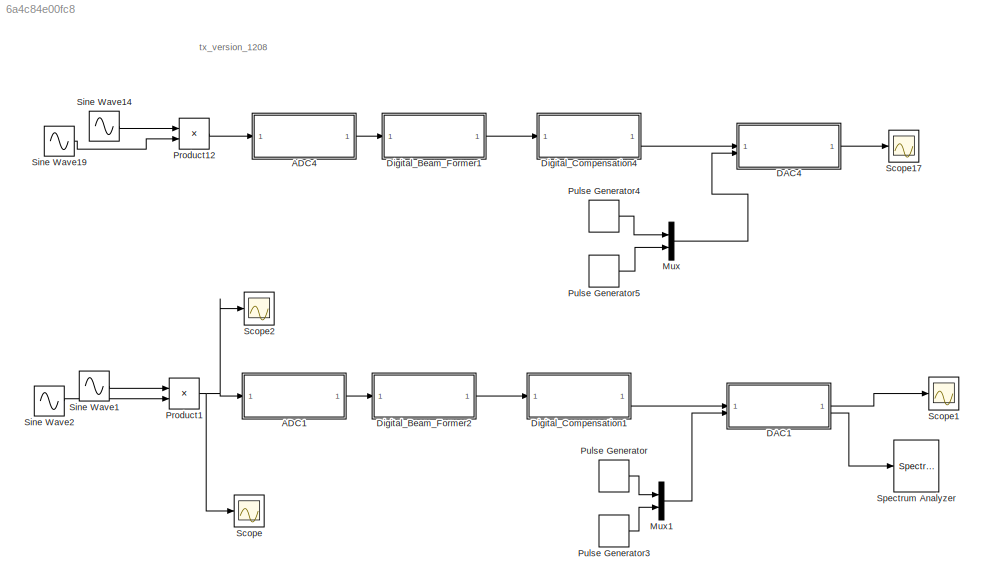
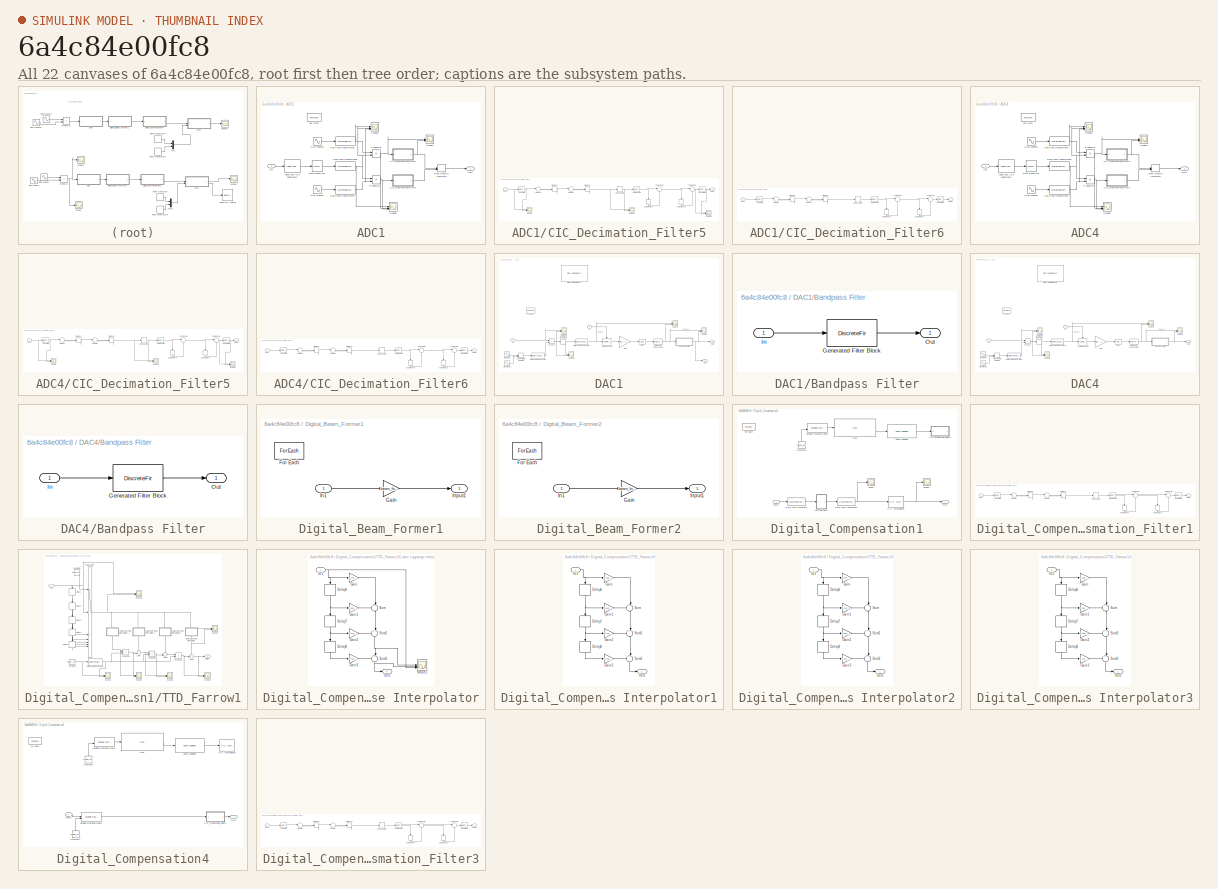
[diagram: thumbnail index - all 22 canvases of the model, root first then tree order]
MODEL slx_6a4c84e00fc8
KIND model
CONFIG AbsTol = auto
CONFIG EnableMultiTasking = off
CONFIG FixedStep = auto
CONFIG MaxStep = auto
CONFIG MinStep = auto
CONFIG RelTol = 1e-3
CONFIG SampleTimeConstraint = Unconstrained
CONFIG SolverName = FixedStepAuto
CONFIG StartTime = 0.0
CONFIG StopTime = 100e-7
BLOCK [SubSystem] ADC1
  TreatAsAtomicUnit = on
BLOCK [SubSystem] ADC1/CIC_Decimation_Filter5
  ErrorFcn = dspFilterRealizedInBasicElemsAlgLoopErrFcnCallback
  Tag = FilterWizardSubSystem
  UserDataPersistent = on
BLOCK [DataTypeConversion] ADC1/CIC_Decimation_Filter5/CombCast5
  OutDataTypeStr = fixdt(1,34,15)
  RndMeth = Floor
  SaturateOnIntegerOverflow = off
BLOCK [Delay] ADC1/CIC_Decimation_Filter5/CombDelay5
  DelayLength = 1
  InitialCondition = 0
  InputPortMap = u0
  NameLocation = right
BLOCK [Delay] ADC1/CIC_Decimation_Filter5/CombDelay6
  DelayLength = 1
  InitialCondition = 0
  InputPortMap = u0
  NameLocation = right
BLOCK [Sum] ADC1/CIC_Decimation_Filter5/CombSum5
  AccumDataTypeStr = fixdt(1,34,15)
  Inputs = |+-
  OutDataTypeStr = fixdt(1,34,15)
BLOCK [Sum] ADC1/CIC_Decimation_Filter5/CombSum6
  AccumDataTypeStr = fixdt(1,34,15)
  Inputs = |+-
  OutDataTypeStr = fixdt(1,34,15)
BLOCK [DataTypeConversion] ADC1/CIC_Decimation_Filter5/ConvertIn
  OutDataTypeStr = fixdt(1,32,15)
  RndMeth = Nearest
BLOCK [DataTypeConversion] ADC1/CIC_Decimation_Filter5/ConvertOut
  OutDataTypeStr = fixdt(1,32,13)
  RndMeth = Floor
  SaturateOnIntegerOverflow = off
BLOCK [DownSample] ADC1/CIC_Decimation_Filter5/Down Sample
  AllowArbitraryFixedInput = on
  InputProcessing = Elements as channels (sample based)
  RateOptions = Allow multirate processing
BLOCK [Inport] ADC1/CIC_Decimation_Filter5/Input
BLOCK [Delay] ADC1/CIC_Decimation_Filter5/IntDelay2
  DelayLength = 1
  InitialCondition = 0
  InputPortMap = u0
BLOCK [Delay] ADC1/CIC_Decimation_Filter5/IntDelay3
  DelayLength = 1
  InitialCondition = 0
  InputPortMap = u0
BLOCK [Sum] ADC1/CIC_Decimation_Filter5/IntSum2
  AccumDataTypeStr = fixdt(1,34,15)
  Inputs = |++
  OutDataTypeStr = fixdt(1,34,15)
BLOCK [Sum] ADC1/CIC_Decimation_Filter5/IntSum3
  AccumDataTypeStr = fixdt(1,34,15)
  Inputs = |++
  OutDataTypeStr = fixdt(1,34,15)
BLOCK [Outport] ADC1/CIC_Decimation_Filter5/Output
BLOCK [Scope] ADC1/CIC_Decimation_Filter5/Scope
  Floating = off
  NumInputPorts = 2
  ScopeSpecificationString = Simulink.scopes.TimeScopeBlockCfg('CurrentConfiguration', extmgr.ConfigurationSet(extmgr.Configuration('Core','General UI',true),extmgr.Configuration('Core','Source UI',true),extmgr.Configuration('Sources','WiredSimulink',true,'DataLoggingVariableName','ScopeData1'),extmgr.Configuration('Visuals','Time Domain',true,'SerializedDisplays',{struct('MinYLimReal','-36.95312','MaxYLimReal','36.95312','YL...<+2062ch>
BLOCK [Scope] ADC1/CIC_Decimation_Filter5/Scope1
  Floating = off
  NumInputPorts = 2
  ScopeSpecificationString = Simulink.scopes.TimeScopeBlockCfg('CurrentConfiguration', extmgr.ConfigurationSet(extmgr.Configuration('Core','General UI',true),extmgr.Configuration('Core','Source UI',true),extmgr.Configuration('Sources','WiredSimulink',true,'DataLoggingVariableName','ScopeData2'),extmgr.Configuration('Visuals','Time Domain',true,'SerializedDisplays',{struct('MinYLimReal','-83.625','MaxYLimReal','752.625','YLabe...<+2028ch>
BLOCK [Scope] ADC1/CIC_Decimation_Filter5/Scope2
  Floating = off
  NumInputPorts = 2
  ScopeSpecificationString = Simulink.scopes.TimeScopeBlockCfg('CurrentConfiguration', extmgr.ConfigurationSet(extmgr.Configuration('Core','General UI',true),extmgr.Configuration('Core','Source UI',true),extmgr.Configuration('Sources','WiredSimulink',true,'DataLoggingVariableName','ScopeData3'),extmgr.Configuration('Visuals','Time Domain',true,'SerializedDisplays',{struct('MinYLimReal','-73.90625','MaxYLimReal','73.90625','YL...<+2076ch>
BLOCK [SubSystem] ADC1/CIC_Decimation_Filter6
  ErrorFcn = dspFilterRealizedInBasicElemsAlgLoopErrFcnCallback
  Tag = FilterWizardSubSystem
  UserDataPersistent = on
BLOCK [DataTypeConversion] ADC1/CIC_Decimation_Filter6/CombCast5
  OutDataTypeStr = fixdt(1,34,15)
  RndMeth = Floor
  SaturateOnIntegerOverflow = off
BLOCK [Delay] ADC1/CIC_Decimation_Filter6/CombDelay5
  DelayLength = 1
  InitialCondition = 0
  InputPortMap = u0
  NameLocation = right
BLOCK [Delay] ADC1/CIC_Decimation_Filter6/CombDelay6
  DelayLength = 1
  InitialCondition = 0
  InputPortMap = u0
  NameLocation = right
BLOCK [Sum] ADC1/CIC_Decimation_Filter6/CombSum5
  AccumDataTypeStr = fixdt(1,34,15)
  Inputs = |+-
  OutDataTypeStr = fixdt(1,34,15)
BLOCK [Sum] ADC1/CIC_Decimation_Filter6/CombSum6
  AccumDataTypeStr = fixdt(1,34,15)
  Inputs = |+-
  OutDataTypeStr = fixdt(1,34,15)
BLOCK [DataTypeConversion] ADC1/CIC_Decimation_Filter6/ConvertIn
  OutDataTypeStr = fixdt(1,32,15)
  RndMeth = Nearest
BLOCK [DataTypeConversion] ADC1/CIC_Decimation_Filter6/ConvertOut
  OutDataTypeStr = fixdt(1,32,13)
  RndMeth = Floor
  SaturateOnIntegerOverflow = off
BLOCK [DownSample] ADC1/CIC_Decimation_Filter6/Down Sample
  AllowArbitraryFixedInput = on
  InputProcessing = Elements as channels (sample based)
  RateOptions = Allow multirate processing
BLOCK [Inport] ADC1/CIC_Decimation_Filter6/Input
BLOCK [Delay] ADC1/CIC_Decimation_Filter6/IntDelay2
  DelayLength = 1
  InitialCondition = 0
  InputPortMap = u0
BLOCK [Delay] ADC1/CIC_Decimation_Filter6/IntDelay3
  DelayLength = 1
  InitialCondition = 0
  InputPortMap = u0
BLOCK [Sum] ADC1/CIC_Decimation_Filter6/IntSum2
  AccumDataTypeStr = fixdt(1,34,15)
  Inputs = |++
  OutDataTypeStr = fixdt(1,34,15)
BLOCK [Sum] ADC1/CIC_Decimation_Filter6/IntSum3
  AccumDataTypeStr = fixdt(1,34,15)
  Inputs = |++
  OutDataTypeStr = fixdt(1,34,15)
BLOCK [Outport] ADC1/CIC_Decimation_Filter6/Output
BLOCK [DataTypeConversion] ADC1/Data Type Conversion15
  OutDataTypeStr = fixdt(1,18,6)
  RndMeth = Floor
  SaturateOnIntegerOverflow = off
BLOCK [DataTypeConversion] ADC1/Data Type Conversion16
  OutDataTypeStr = fixdt(1,16,6)
  RndMeth = Floor
  SaturateOnIntegerOverflow = off
BLOCK [DataTypeConversion] ADC1/Data Type Conversion17
  OutDataTypeStr = fixdt(1,16,6)
  RndMeth = Floor
  SaturateOnIntegerOverflow = off
BLOCK [ForEach] ADC1/For Each
  DisableCoverage = on
  NameLocation = top
BLOCK [Reference] ADC1/Idealized ADC quantizer3  REF=simulink_extras/Additional
Discrete/Idealized ADC quantizer
  AttributesFormatString = (settings: %<NumberOfConverterBits>-bit converter\nVmin: %<Vmin>, Vmax: %<Vmax>)
  SourceBlock = simulink_extras/Additional\nDiscrete/Idealized ADC quantizer
  SourceType = IdealADC
BLOCK [Inport] ADC1/In1
  Partition = on
  PartitionDimension = 1
  PartitionOffset = 0
  PartitionWidth = 1
BLOCK [Outport] ADC1/Out1
  ConcatenationDimension = 1
BLOCK [Product] ADC1/Product18
BLOCK [Product] ADC1/Product19
BLOCK [RateTransition] ADC1/Rate Transition
  OutPortSampleTime = 1/1e9
BLOCK [RealImagToComplex] ADC1/Real-Imag to Complex4
BLOCK [Scope] ADC1/Scope3
  Floating = off
  NameLocation = left
  NumInputPorts = 3
  ScopeSpecificationString = Simulink.scopes.TimeScopeBlockCfg('CurrentConfiguration', extmgr.ConfigurationSet(extmgr.Configuration('Core','General UI',true),extmgr.Configuration('Core','Source UI',true),extmgr.Configuration('Sources','WiredSimulink',true,'DataLoggingVariableName','ScopeData14'),extmgr.Configuration('Visuals','Time Domain',true,'SerializedDisplays',{struct('MinYLimReal','-1.24805','MaxYLimReal','1.23242','YLa...<+3063ch>
BLOCK [Scope] ADC1/Scope4
  Floating = off
  NumInputPorts = 2
  ScopeSpecificationString = Simulink.scopes.TimeScopeBlockCfg('CurrentConfiguration', extmgr.ConfigurationSet(extmgr.Configuration('Core','General UI',true),extmgr.Configuration('Core','Source UI',true),extmgr.Configuration('Sources','WiredSimulink',true,'DataLoggingVariableName','ScopeData15'),extmgr.Configuration('Visuals','Time Domain',true,'SerializedDisplays',{struct('MinYLimReal','-2.30469','MaxYLimReal','2.30469','YLa...<+2244ch>
BLOCK [Scope] ADC1/Scope8
  Floating = off
  NumInputPorts = 3
  ScopeSpecificationString = Simulink.scopes.TimeScopeBlockCfg('CurrentConfiguration', extmgr.ConfigurationSet(extmgr.Configuration('Core','General UI',true),extmgr.Configuration('Core','Source UI',true),extmgr.Configuration('Sources','WiredSimulink',true,'DataLoggingVariableName','ScopeData16'),extmgr.Configuration('Visuals','Time Domain',true,'SerializedDisplays',{struct('MinYLimReal','-2559.875','MaxYLimReal','2558.875','Y...<+3006ch>
BLOCK [Sin] ADC1/Sine Wave33
  Frequency = 2*pi*250e6
  Phase = 1.57
  SampleTime = 1/1e9
BLOCK [Sin] ADC1/Sine Wave34
  Frequency = 2*pi*250e6
  SampleTime = 1/1e9
BLOCK [SubSystem] ADC4
  Commented = on
  TreatAsAtomicUnit = on
BLOCK [SubSystem] ADC4/CIC_Decimation_Filter5
  ErrorFcn = dspFilterRealizedInBasicElemsAlgLoopErrFcnCallback
  Tag = FilterWizardSubSystem
  UserDataPersistent = on
BLOCK [DataTypeConversion] ADC4/CIC_Decimation_Filter5/CombCast5
  OutDataTypeStr = fixdt(1,34,15)
  RndMeth = Floor
  SaturateOnIntegerOverflow = off
BLOCK [Delay] ADC4/CIC_Decimation_Filter5/CombDelay5
  DelayLength = 1
  InitialCondition = 0
  InputPortMap = u0
  NameLocation = right
BLOCK [Delay] ADC4/CIC_Decimation_Filter5/CombDelay6
  DelayLength = 1
  InitialCondition = 0
  InputPortMap = u0
  NameLocation = right
BLOCK [Sum] ADC4/CIC_Decimation_Filter5/CombSum5
  AccumDataTypeStr = fixdt(1,34,15)
  Inputs = |+-
  OutDataTypeStr = fixdt(1,34,15)
BLOCK [Sum] ADC4/CIC_Decimation_Filter5/CombSum6
  AccumDataTypeStr = fixdt(1,34,15)
  Inputs = |+-
  OutDataTypeStr = fixdt(1,34,15)
BLOCK [DataTypeConversion] ADC4/CIC_Decimation_Filter5/ConvertIn
  OutDataTypeStr = fixdt(1,32,15)
  RndMeth = Nearest
BLOCK [DataTypeConversion] ADC4/CIC_Decimation_Filter5/ConvertOut
  OutDataTypeStr = fixdt(1,32,13)
  RndMeth = Floor
  SaturateOnIntegerOverflow = off
BLOCK [DownSample] ADC4/CIC_Decimation_Filter5/Down Sample
  AllowArbitraryFixedInput = on
  InputProcessing = Elements as channels (sample based)
  RateOptions = Allow multirate processing
BLOCK [Inport] ADC4/CIC_Decimation_Filter5/Input
BLOCK [Delay] ADC4/CIC_Decimation_Filter5/IntDelay2
  DelayLength = 1
  InitialCondition = 0
  InputPortMap = u0
BLOCK [Delay] ADC4/CIC_Decimation_Filter5/IntDelay3
  DelayLength = 1
  InitialCondition = 0
  InputPortMap = u0
BLOCK [Sum] ADC4/CIC_Decimation_Filter5/IntSum2
  AccumDataTypeStr = fixdt(1,34,15)
  Inputs = |++
  OutDataTypeStr = fixdt(1,34,15)
BLOCK [Sum] ADC4/CIC_Decimation_Filter5/IntSum3
  AccumDataTypeStr = fixdt(1,34,15)
  Inputs = |++
  OutDataTypeStr = fixdt(1,34,15)
BLOCK [Outport] ADC4/CIC_Decimation_Filter5/Output
BLOCK [Scope] ADC4/CIC_Decimation_Filter5/Scope
  Floating = off
  NumInputPorts = 2
  ScopeSpecificationString = Simulink.scopes.TimeScopeBlockCfg('CurrentConfiguration', extmgr.ConfigurationSet(extmgr.Configuration('Core','General UI',true),extmgr.Configuration('Core','Source UI',true),extmgr.Configuration('Sources','WiredSimulink',true,'DataLoggingVariableName','ScopeData1'),extmgr.Configuration('Visuals','Time Domain',true,'SerializedDisplays',{struct('MinYLimReal','-36.95312','MaxYLimReal','36.95312','YL...<+2062ch>
BLOCK [Scope] ADC4/CIC_Decimation_Filter5/Scope1
  Floating = off
  NumInputPorts = 2
  ScopeSpecificationString = Simulink.scopes.TimeScopeBlockCfg('CurrentConfiguration', extmgr.ConfigurationSet(extmgr.Configuration('Core','General UI',true),extmgr.Configuration('Core','Source UI',true),extmgr.Configuration('Sources','WiredSimulink',true,'DataLoggingVariableName','ScopeData2'),extmgr.Configuration('Visuals','Time Domain',true,'SerializedDisplays',{struct('MinYLimReal','-83.625','MaxYLimReal','752.625','YLabe...<+2028ch>
BLOCK [Scope] ADC4/CIC_Decimation_Filter5/Scope2
  Floating = off
  NumInputPorts = 2
  ScopeSpecificationString = Simulink.scopes.TimeScopeBlockCfg('CurrentConfiguration', extmgr.ConfigurationSet(extmgr.Configuration('Core','General UI',true),extmgr.Configuration('Core','Source UI',true),extmgr.Configuration('Sources','WiredSimulink',true,'DataLoggingVariableName','ScopeData3'),extmgr.Configuration('Visuals','Time Domain',true,'SerializedDisplays',{struct('MinYLimReal','-73.90625','MaxYLimReal','73.90625','YL...<+2076ch>
BLOCK [SubSystem] ADC4/CIC_Decimation_Filter6
  ErrorFcn = dspFilterRealizedInBasicElemsAlgLoopErrFcnCallback
  Tag = FilterWizardSubSystem
  UserDataPersistent = on
BLOCK [DataTypeConversion] ADC4/CIC_Decimation_Filter6/CombCast5
  OutDataTypeStr = fixdt(1,34,15)
  RndMeth = Floor
  SaturateOnIntegerOverflow = off
BLOCK [Delay] ADC4/CIC_Decimation_Filter6/CombDelay5
  DelayLength = 1
  InitialCondition = 0
  InputPortMap = u0
  NameLocation = right
BLOCK [Delay] ADC4/CIC_Decimation_Filter6/CombDelay6
  DelayLength = 1
  InitialCondition = 0
  InputPortMap = u0
  NameLocation = right
BLOCK [Sum] ADC4/CIC_Decimation_Filter6/CombSum5
  AccumDataTypeStr = fixdt(1,34,15)
  Inputs = |+-
  OutDataTypeStr = fixdt(1,34,15)
BLOCK [Sum] ADC4/CIC_Decimation_Filter6/CombSum6
  AccumDataTypeStr = fixdt(1,34,15)
  Inputs = |+-
  OutDataTypeStr = fixdt(1,34,15)
BLOCK [DataTypeConversion] ADC4/CIC_Decimation_Filter6/ConvertIn
  OutDataTypeStr = fixdt(1,32,15)
  RndMeth = Nearest
BLOCK [DataTypeConversion] ADC4/CIC_Decimation_Filter6/ConvertOut
  OutDataTypeStr = fixdt(1,32,13)
  RndMeth = Floor
  SaturateOnIntegerOverflow = off
BLOCK [DownSample] ADC4/CIC_Decimation_Filter6/Down Sample
  AllowArbitraryFixedInput = on
  InputProcessing = Elements as channels (sample based)
  RateOptions = Allow multirate processing
BLOCK [Inport] ADC4/CIC_Decimation_Filter6/Input
BLOCK [Delay] ADC4/CIC_Decimation_Filter6/IntDelay2
  DelayLength = 1
  InitialCondition = 0
  InputPortMap = u0
BLOCK [Delay] ADC4/CIC_Decimation_Filter6/IntDelay3
  DelayLength = 1
  InitialCondition = 0
  InputPortMap = u0
BLOCK [Sum] ADC4/CIC_Decimation_Filter6/IntSum2
  AccumDataTypeStr = fixdt(1,34,15)
  Inputs = |++
  OutDataTypeStr = fixdt(1,34,15)
BLOCK [Sum] ADC4/CIC_Decimation_Filter6/IntSum3
  AccumDataTypeStr = fixdt(1,34,15)
  Inputs = |++
  OutDataTypeStr = fixdt(1,34,15)
BLOCK [Outport] ADC4/CIC_Decimation_Filter6/Output
BLOCK [DataTypeConversion] ADC4/Data Type Conversion15
  OutDataTypeStr = fixdt(1,18,6)
  RndMeth = Floor
  SaturateOnIntegerOverflow = off
BLOCK [DataTypeConversion] ADC4/Data Type Conversion16
  OutDataTypeStr = fixdt(1,16,6)
  RndMeth = Floor
  SaturateOnIntegerOverflow = off
BLOCK [DataTypeConversion] ADC4/Data Type Conversion17
  OutDataTypeStr = fixdt(1,16,6)
  RndMeth = Floor
  SaturateOnIntegerOverflow = off
BLOCK [ForEach] ADC4/For Each
  DisableCoverage = on
  NameLocation = top
BLOCK [Reference] ADC4/Idealized ADC quantizer3  REF=simulink_extras/Additional
Discrete/Idealized ADC quantizer
  AttributesFormatString = (settings: %<NumberOfConverterBits>-bit converter\nVmin: %<Vmin>, Vmax: %<Vmax>)
  SourceBlock = simulink_extras/Additional\nDiscrete/Idealized ADC quantizer
  SourceType = IdealADC
BLOCK [Inport] ADC4/In1
  Partition = on
  PartitionDimension = 1
  PartitionOffset = 0
  PartitionWidth = 1
BLOCK [Outport] ADC4/Out1
  ConcatenationDimension = 1
BLOCK [Product] ADC4/Product18
BLOCK [Product] ADC4/Product19
BLOCK [RateTransition] ADC4/Rate Transition
  OutPortSampleTime = 1/1e9
BLOCK [RealImagToComplex] ADC4/Real-Imag to Complex4
BLOCK [Scope] ADC4/Scope3
  Floating = off
  NameLocation = left
  NumInputPorts = 3
  ScopeSpecificationString = Simulink.scopes.TimeScopeBlockCfg('CurrentConfiguration', extmgr.ConfigurationSet(extmgr.Configuration('Core','General UI',true),extmgr.Configuration('Core','Source UI',true),extmgr.Configuration('Sources','WiredSimulink',true,'DataLoggingVariableName','ScopeData14'),extmgr.Configuration('Visuals','Time Domain',true,'SerializedDisplays',{struct('MinYLimReal','-1.24805','MaxYLimReal','1.23242','YLa...<+2982ch>
BLOCK [Scope] ADC4/Scope4
  Floating = off
  NumInputPorts = 2
  ScopeSpecificationString = Simulink.scopes.TimeScopeBlockCfg('CurrentConfiguration', extmgr.ConfigurationSet(extmgr.Configuration('Core','General UI',true),extmgr.Configuration('Core','Source UI',true),extmgr.Configuration('Sources','WiredSimulink',true,'DataLoggingVariableName','ScopeData15'),extmgr.Configuration('Visuals','Time Domain',true,'SerializedDisplays',{struct('MinYLimReal','-36.95312','MaxYLimReal','36.95312','Y...<+2224ch>
BLOCK [Scope] ADC4/Scope8
  Floating = off
  NumInputPorts = 3
  ScopeSpecificationString = Simulink.scopes.TimeScopeBlockCfg('CurrentConfiguration', extmgr.ConfigurationSet(extmgr.Configuration('Core','General UI',true),extmgr.Configuration('Core','Source UI',true),extmgr.Configuration('Sources','WiredSimulink',true,'DataLoggingVariableName','ScopeData16'),extmgr.Configuration('Visuals','Time Domain',true,'SerializedDisplays',{struct('MinYLimReal','-2559.875','MaxYLimReal','2558.875','Y...<+3006ch>
BLOCK [Sin] ADC4/Sine Wave33
  Frequency = 2*pi*250e6
  Phase = 1.57
  SampleTime = 1/1e9
BLOCK [Sin] ADC4/Sine Wave34
  Frequency = 2*pi*250e6
  SampleTime = 1/1e9
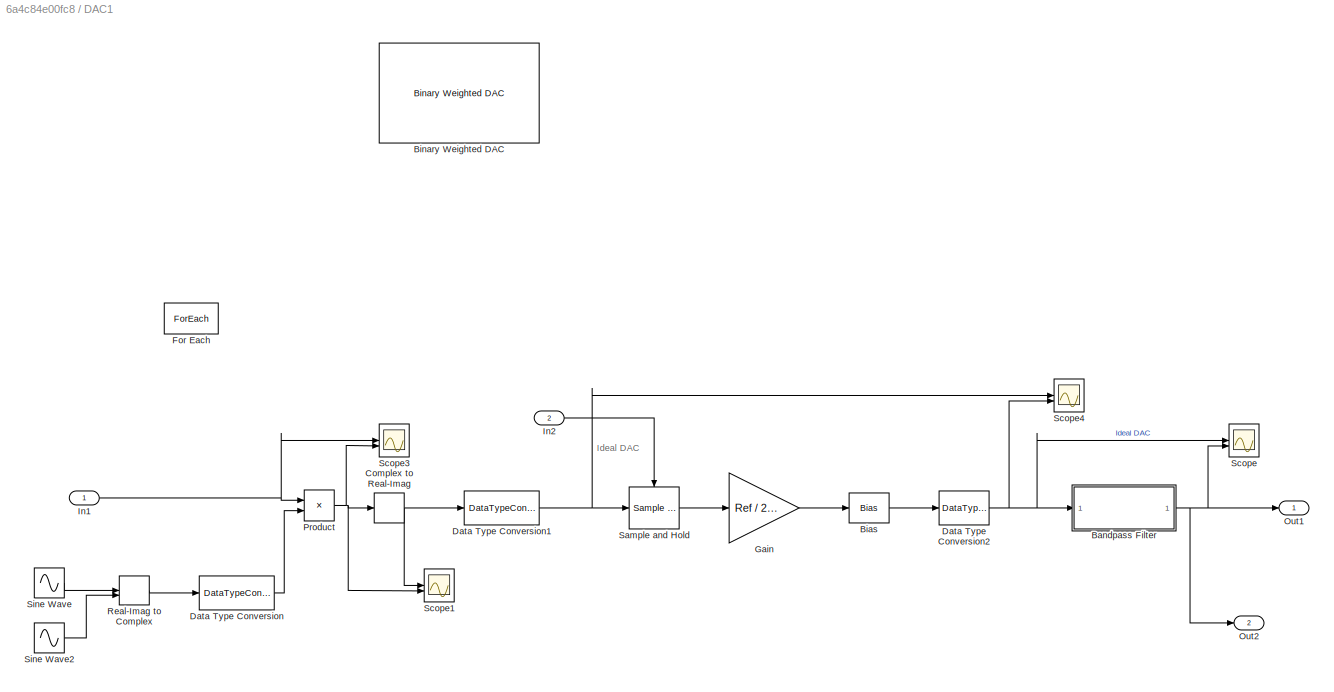
BLOCK [SubSystem] DAC1
  TreatAsAtomicUnit = on
BLOCK [SubSystem] DAC1/Bandpass Filter
  CopyFcn = fdesignblkfcn(gcbh, {'CopyFcn'});
  DialogController = fdesignblkfcn
  InitFcn = fdesignblkfcn(gcbh, {'InitFcn'});
  UserDataPersistent = on
BLOCK [DiscreteFir] DAC1/Bandpass Filter/Generated Filter Block
  Coefficients = [0.000646930090822004961 -0.000497671160010674184 0.000669682907159244644 -0.000863265638125511629 0.00107434177424948476 -0.00129824676533420906 0.00152885752867004242 -0.00175777516308470768 0.00197671818651552235 -0.00217850290587446975 0.00235243304274583391 -0.00249259080896993904 0.00259084634576933412 -0.0026418349968450397 0.00264154918254561055 -0.00258837893165569585 0.002482644909797982...<+12941ch>
  InputPortMap = u0
  InputProcessing = Columns as channels (frame based)
  OutputPortMap = o0
  Tag = BlockMethodSubSystem
BLOCK [Inport] DAC1/Bandpass Filter/In
BLOCK [Outport] DAC1/Bandpass Filter/Out
  VectorParamsAs1DForOutWhenUnconnected = off
BLOCK [Bias] DAC1/Bias
  Bias = Bias
  SaturateOnIntegerOverflow = off
BLOCK [Reference] DAC1/Binary Weighted DAC  REF=msbDacArchitectures/Binary Weighted DAC
  Commented = on
  NameLocation = top
  SourceBlock = msbDacArchitectures/Binary Weighted DAC
  SourceType = Binary Weighted DAC
BLOCK [ComplexToRealImag] DAC1/Complex to Real-Imag
  Output = Real
BLOCK [DataTypeConversion] DAC1/Data Type Conversion
  OutDataTypeStr = fixdt(1,16,6)
  RndMeth = Floor
  SaturateOnIntegerOverflow = off
BLOCK [DataTypeConversion] DAC1/Data Type Conversion1
  OutDataTypeStr = double
  RndMeth = Floor
  SaturateOnIntegerOverflow = off
BLOCK [DataTypeConversion] DAC1/Data Type Conversion2
  OutDataTypeStr = double
  RndMeth = Floor
  SaturateOnIntegerOverflow = off
BLOCK [ForEach] DAC1/For Each
  DisableCoverage = on
BLOCK [Gain] DAC1/Gain
  Gain = Ref / 2^N
BLOCK [Inport] DAC1/In1
  Partition = on
  PartitionDimension = 1
  PartitionOffset = 0
  PartitionWidth = 1
BLOCK [Inport] DAC1/In2
  Partition = on
  PartitionDimension = 1
  PartitionOffset = 0
  PartitionWidth = 1
  Port = 2
BLOCK [Outport] DAC1/Out1
  ConcatenationDimension = 1
BLOCK [Outport] DAC1/Out2
  ConcatenationDimension = 1
  Port = 2
BLOCK [Product] DAC1/Product
BLOCK [RealImagToComplex] DAC1/Real-Imag to Complex
BLOCK [Reference] DAC1/Sample and Hold  REF=dspsigops/Sample
and Hold
  SourceBlock = dspsigops/Sample\nand Hold
  SourceType = Sample and Hold
BLOCK [Scope] DAC1/Scope
  Floating = off
  NumInputPorts = 2
  ScopeSpecificationString = Simulink.scopes.TimeScopeBlockCfg('CurrentConfiguration', extmgr.ConfigurationSet(extmgr.Configuration('Core','General UI',true),extmgr.Configuration('Core','Source UI',true),extmgr.Configuration('Sources','WiredSimulink',true,'DataLoggingVariableName','ScopeData2'),extmgr.Configuration('Visuals','Time Domain',true,'SerializedDisplays',{struct('MinYLimReal','-32.3','MaxYLimReal','32.3','YLabelReal...<+2451ch>
BLOCK [Scope] DAC1/Scope1
  Floating = off
  NumInputPorts = 2
  ScopeSpecificationString = Simulink.scopes.TimeScopeBlockCfg('CurrentConfiguration', extmgr.ConfigurationSet(extmgr.Configuration('Core','General UI',true),extmgr.Configuration('Core','Source UI',true),extmgr.Configuration('Sources','WiredSimulink',true,'DataLoggingVariableName','ScopeData3'),extmgr.Configuration('Visuals','Time Domain',true,'SerializedDisplays',{struct('MinYLimReal','-18919.56696','MaxYLimReal','18919.5669...<+2141ch>
BLOCK [Scope] DAC1/Scope3
  Floating = off
  NumInputPorts = 2
  ScopeSpecificationString = Simulink.scopes.TimeScopeBlockCfg('CurrentConfiguration', extmgr.ConfigurationSet(extmgr.Configuration('Core','General UI',true),extmgr.Configuration('Core','Source UI',true),extmgr.Configuration('Sources','WiredSimulink',true,'DataLoggingVariableName','ScopeData8'),extmgr.Configuration('Visuals','Time Domain',true,'SerializedDisplays',{struct('MinYLimReal','-631.70312','MaxYLimReal','631.57812','...<+2061ch>
BLOCK [Scope] DAC1/Scope4
  Floating = off
  NumInputPorts = 2
  ScopeSpecificationString = Simulink.scopes.TimeScopeBlockCfg('CurrentConfiguration', extmgr.ConfigurationSet(extmgr.Configuration('Core','General UI',true),extmgr.Configuration('Core','Source UI',true),extmgr.Configuration('Sources','WiredSimulink',true,'DataLoggingVariableName','ScopeData12'),extmgr.Configuration('Visuals','Time Domain',true,'SerializedDisplays',{struct('MinYLimReal','-631.57812','MaxYLimReal','631.70312',...<+2160ch>
BLOCK [Sin] DAC1/Sine Wave
  Frequency = 2*pi*250e6
  Phase = 1.57
  SampleTime = 1/1e9
BLOCK [Sin] DAC1/Sine Wave2
  Frequency = 2*pi*250e6
  SampleTime = 1/1e9
BLOCK [SubSystem] DAC4
  Commented = on
  TreatAsAtomicUnit = on
BLOCK [SubSystem] DAC4/Bandpass Filter
  CopyFcn = fdesignblkfcn(gcbh, {'CopyFcn'});
  DialogController = fdesignblkfcn
  InitFcn = fdesignblkfcn(gcbh, {'InitFcn'});
  UserDataPersistent = on
BLOCK [DiscreteFir] DAC4/Bandpass Filter/Generated Filter Block
  Coefficients = [-0.0012202546535986659 -9.13233975482966975e-05 -8.99256829754742885e-05 -8.49568620794813187e-05 -7.65918257031608733e-05 -6.45471094074974157e-05 -4.91277813323746533e-05 -3.02130898541744078e-05 -8.26870645732298906e-06 1.6671662698626823e-05 4.39541890279793922e-05 7.34165310252373626e-05 0.00010423396503717428 0.000136131752137668013 0.000168143983641900536 0.000199929301866810821 0.00023043...<+11371ch>
  InputPortMap = u0
  InputProcessing = Columns as channels (frame based)
  OutputPortMap = o0
  Tag = BlockMethodSubSystem
BLOCK [Inport] DAC4/Bandpass Filter/In
BLOCK [Outport] DAC4/Bandpass Filter/Out
  VectorParamsAs1DForOutWhenUnconnected = off
BLOCK [Bias] DAC4/Bias
  Bias = Bias
  SaturateOnIntegerOverflow = off
BLOCK [Reference] DAC4/Binary Weighted DAC  REF=msbDacArchitectures/Binary Weighted DAC
  Commented = on
  NameLocation = top
  SourceBlock = msbDacArchitectures/Binary Weighted DAC
  SourceType = Binary Weighted DAC
BLOCK [ComplexToRealImag] DAC4/Complex to Real-Imag
  Output = Real
BLOCK [DataTypeConversion] DAC4/Data Type Conversion
  OutDataTypeStr = fixdt(1,16,6)
  RndMeth = Floor
  SaturateOnIntegerOverflow = off
BLOCK [DataTypeConversion] DAC4/Data Type Conversion1
  OutDataTypeStr = double
  RndMeth = Floor
  SaturateOnIntegerOverflow = off
BLOCK [DataTypeConversion] DAC4/Data Type Conversion2
  OutDataTypeStr = double
  RndMeth = Floor
  SaturateOnIntegerOverflow = off
BLOCK [ForEach] DAC4/For Each
  DisableCoverage = on
BLOCK [Gain] DAC4/Gain
  Gain = Ref / 2^N
BLOCK [Inport] DAC4/In1
  Partition = on
  PartitionDimension = 1
  PartitionOffset = 0
  PartitionWidth = 1
BLOCK [Inport] DAC4/In2
  Partition = on
  PartitionDimension = 1
  PartitionOffset = 0
  PartitionWidth = 1
  Port = 2
BLOCK [Outport] DAC4/Out1
  ConcatenationDimension = 1
BLOCK [Product] DAC4/Product
BLOCK [RealImagToComplex] DAC4/Real-Imag to Complex
BLOCK [Reference] DAC4/Sample and Hold  REF=dspsigops/Sample
and Hold
  SourceBlock = dspsigops/Sample\nand Hold
  SourceType = Sample and Hold
BLOCK [Scope] DAC4/Scope
  Floating = off
  NumInputPorts = 2
  ScopeSpecificationString = Simulink.scopes.TimeScopeBlockCfg('CurrentConfiguration', extmgr.ConfigurationSet(extmgr.Configuration('Core','General UI',true),extmgr.Configuration('Core','Source UI',true),extmgr.Configuration('Sources','WiredSimulink',true,'DataLoggingVariableName','ScopeData2'),extmgr.Configuration('Visuals','Time Domain',true,'SerializedDisplays',{struct('MinYLimReal','-37.83538','MaxYLimReal','37.83538','YL...<+2043ch>
BLOCK [Scope] DAC4/Scope1
  Floating = off
  NumInputPorts = 2
  ScopeSpecificationString = Simulink.scopes.TimeScopeBlockCfg('CurrentConfiguration', extmgr.ConfigurationSet(extmgr.Configuration('Core','General UI',true),extmgr.Configuration('Core','Source UI',true),extmgr.Configuration('Sources','WiredSimulink',true,'DataLoggingVariableName','ScopeData3'),extmgr.Configuration('Visuals','Time Domain',true,'SerializedDisplays',{struct('MinYLimReal','-18919.56696','MaxYLimReal','18919.5669...<+2141ch>
BLOCK [Scope] DAC4/Scope3
  Floating = off
  NumInputPorts = 2
  ScopeSpecificationString = Simulink.scopes.TimeScopeBlockCfg('CurrentConfiguration', extmgr.ConfigurationSet(extmgr.Configuration('Core','General UI',true),extmgr.Configuration('Core','Source UI',true),extmgr.Configuration('Sources','WiredSimulink',true,'DataLoggingVariableName','ScopeData8'),extmgr.Configuration('Visuals','Time Domain',true,'SerializedDisplays',{struct('MinYLimReal','-18919.56696','MaxYLimReal','18919.5669...<+2101ch>
BLOCK [Scope] DAC4/Scope4
  Floating = off
  NumInputPorts = 2
  ScopeSpecificationString = Simulink.scopes.TimeScopeBlockCfg('CurrentConfiguration', extmgr.ConfigurationSet(extmgr.Configuration('Core','General UI',true),extmgr.Configuration('Core','Source UI',true),extmgr.Configuration('Sources','WiredSimulink',true,'DataLoggingVariableName','ScopeData12'),extmgr.Configuration('Visuals','Time Domain',true,'SerializedDisplays',{struct('MinYLimReal','-18917.69043','MaxYLimReal','18917.690...<+2117ch>
BLOCK [Sin] DAC4/Sine Wave
  Frequency = 2*pi*250e6
  Phase = 1.57
  SampleTime = 1/1e9
BLOCK [Sin] DAC4/Sine Wave2
  Frequency = 2*pi*250e6
  SampleTime = 1/1e9
BLOCK [SubSystem] Digital_Beam_Former1
  Commented = on
  TreatAsAtomicUnit = on
BLOCK [ForEach] Digital_Beam_Former1/For Each
  DisableCoverage = on
BLOCK [Gain] Digital_Beam_Former1/Gain
  Gain = beam_former_gain_array
  NameLocation = top
  OutDataTypeStr = fixdt(1,32,13)
BLOCK [Inport] Digital_Beam_Former1/In1
  Partition = on
  PartitionDimension = 1
  PartitionOffset = 0
  PartitionWidth = 1
BLOCK [Outport] Digital_Beam_Former1/Input1
  ConcatenationDimension = 1
BLOCK [SubSystem] Digital_Beam_Former2
  TreatAsAtomicUnit = on
BLOCK [ForEach] Digital_Beam_Former2/For Each
  DisableCoverage = on
BLOCK [Gain] Digital_Beam_Former2/Gain
  Gain = beam_former_gain_array
  NameLocation = top
  OutDataTypeStr = fixdt(1,32,13)
BLOCK [Inport] Digital_Beam_Former2/In1
  Partition = on
  PartitionDimension = 1
  PartitionOffset = 0
  PartitionWidth = 1
BLOCK [Outport] Digital_Beam_Former2/Input1
  ConcatenationDimension = 1
BLOCK [SubSystem] Digital_Compensation1
  TreatAsAtomicUnit = on
BLOCK [Reference] Digital_Compensation1/CIC Interpolation  REF=dspmlti4/CIC
Interpolation
  LibrarySourceBlock = dsphdlsupportfiltering/CIC\nInterpolation
  SourceBlock = dspmlti4/CIC\nInterpolation
  SourceType = CIC Interpolation
  UserDataPersistent = on
BLOCK [SubSystem] Digital_Compensation1/CIC_Decimation_Filter1
  Commented = on
  ErrorFcn = dspFilterRealizedInBasicElemsAlgLoopErrFcnCallback
  Tag = FilterWizardSubSystem
  UserDataPersistent = on
BLOCK [DataTypeConversion] Digital_Compensation1/CIC_Decimation_Filter1/CombCast5
  OutDataTypeStr = fixdt(1,34,15)
  RndMeth = Floor
  SaturateOnIntegerOverflow = off
BLOCK [Delay] Digital_Compensation1/CIC_Decimation_Filter1/CombDelay5
  DelayLength = 1
  InitialCondition = 0
  InputPortMap = u0
  NameLocation = right
BLOCK [Delay] Digital_Compensation1/CIC_Decimation_Filter1/CombDelay6
  DelayLength = 1
  InitialCondition = 0
  InputPortMap = u0
  NameLocation = right
BLOCK [Sum] Digital_Compensation1/CIC_Decimation_Filter1/CombSum5
  AccumDataTypeStr = fixdt(1,34,15)
  Inputs = |+-
  OutDataTypeStr = fixdt(1,34,15)
BLOCK [Sum] Digital_Compensation1/CIC_Decimation_Filter1/CombSum6
  AccumDataTypeStr = fixdt(1,34,15)
  Inputs = |+-
  OutDataTypeStr = fixdt(1,34,15)
BLOCK [DataTypeConversion] Digital_Compensation1/CIC_Decimation_Filter1/ConvertIn
  OutDataTypeStr = fixdt(1,32,15)
  RndMeth = Nearest
BLOCK [DataTypeConversion] Digital_Compensation1/CIC_Decimation_Filter1/ConvertOut
  OutDataTypeStr = fixdt(1,32,13)
  RndMeth = Floor
  SaturateOnIntegerOverflow = off
BLOCK [DownSample] Digital_Compensation1/CIC_Decimation_Filter1/Down Sample
  AllowArbitraryFixedInput = on
  InputProcessing = Elements as channels (sample based)
  RateOptions = Allow multirate processing
BLOCK [Inport] Digital_Compensation1/CIC_Decimation_Filter1/Input
BLOCK [Delay] Digital_Compensation1/CIC_Decimation_Filter1/IntDelay2
  DelayLength = 1
  InitialCondition = 0
  InputPortMap = u0
BLOCK [Delay] Digital_Compensation1/CIC_Decimation_Filter1/IntDelay3
  DelayLength = 1
  InitialCondition = 0
  InputPortMap = u0
BLOCK [Sum] Digital_Compensation1/CIC_Decimation_Filter1/IntSum2
  AccumDataTypeStr = fixdt(1,34,15)
  Inputs = |++
  OutDataTypeStr = fixdt(1,34,15)
BLOCK [Sum] Digital_Compensation1/CIC_Decimation_Filter1/IntSum3
  AccumDataTypeStr = fixdt(1,34,15)
  Inputs = |++
  OutDataTypeStr = fixdt(1,34,15)
BLOCK [Outport] Digital_Compensation1/CIC_Decimation_Filter1/Output
BLOCK [Constant] Digital_Compensation1/Constant2
  Commented = on
  NameLocation = right
  OutDataTypeStr = fixdt(1,16,6)
  Value = fraction_delay
BLOCK [Reference] Digital_Compensation1/DPD  REF=commrfcorlib/DPD
  Commented = on
  SourceBlock = commrfcorlib/DPD
  SourceType = DPD
BLOCK [DataTypeConversion] Digital_Compensation1/Data Type Conversion
  OutDataTypeStr = fixdt(1,16,4)
  RndMeth = Floor
  SaturateOnIntegerOverflow = off
BLOCK [DataTypeConversion] Digital_Compensation1/Data Type Conversion1
  OutDataTypeStr = fixdt(1,16,4)
  RndMeth = Floor
  SaturateOnIntegerOverflow = off
BLOCK [ForEach] Digital_Compensation1/For Each
  DisableCoverage = on
BLOCK [Inport] Digital_Compensation1/Input1
  Partition = on
  PartitionDimension = 1
  PartitionOffset = 0
  PartitionWidth = 1
BLOCK [Reference] Digital_Compensation1/Linear Equalizer  REF=commeq3/Linear Equalizer
  Commented = on
  SourceBlock = commeq3/Linear Equalizer
  SourceType = Linear Equalizer
BLOCK [Outport] Digital_Compensation1/Out2
  ConcatenationDimension = 1
BLOCK [Scope] Digital_Compensation1/Scope
  Floating = off
  NumInputPorts = 1
  ScopeSpecificationString = Simulink.scopes.TimeScopeBlockCfg('CurrentConfiguration', extmgr.ConfigurationSet(extmgr.Configuration('Core','General UI',true),extmgr.Configuration('Core','Source UI',true),extmgr.Configuration('Sources','WiredSimulink',true,'DataLoggingVariableName','ScopeData1'),extmgr.Configuration('Visuals','Time Domain',true,'SerializedDisplays',{struct('MinYLimReal','-315.805','MaxYLimReal','315.805','YLab...<+1468ch>
BLOCK [Scope] Digital_Compensation1/Scope1
  Floating = off
  NumInputPorts = 1
  ScopeSpecificationString = Simulink.scopes.TimeScopeBlockCfg('CurrentConfiguration', extmgr.ConfigurationSet(extmgr.Configuration('Core','General UI',true),extmgr.Configuration('Core','Source UI',true),extmgr.Configuration('Sources','WiredSimulink',true,'DataLoggingVariableName','ScopeData2'),extmgr.Configuration('Visuals','Time Domain',true,'SerializedDisplays',{struct('MinYLimReal','-631.70312','MaxYLimReal','631.57812','...<+1480ch>
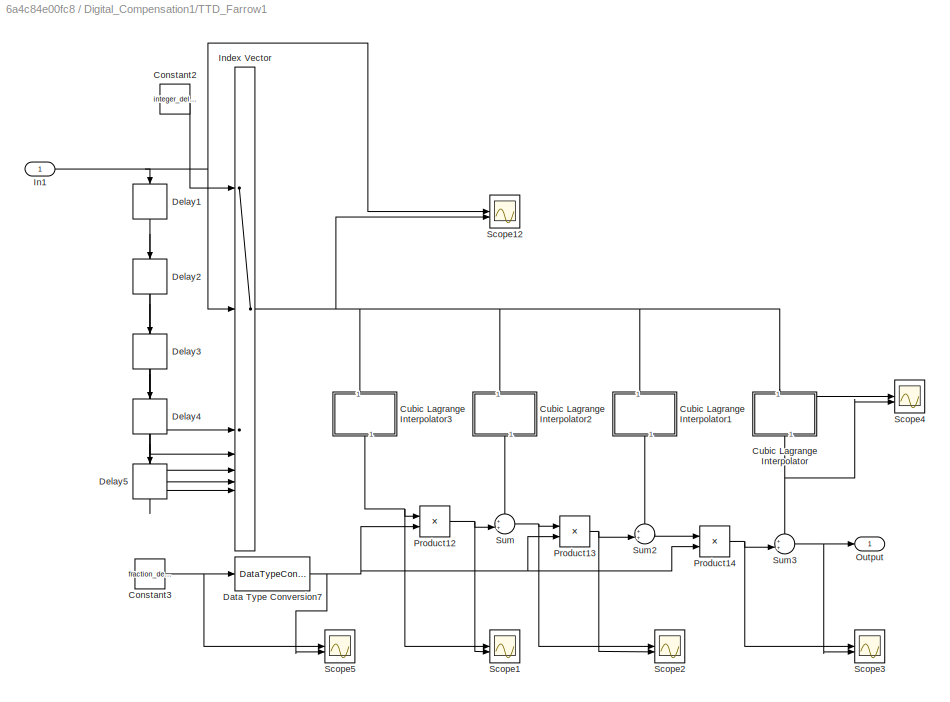
BLOCK [SubSystem] Digital_Compensation1/TTD_Farrow1
BLOCK [Constant] Digital_Compensation1/TTD_Farrow1/Constant2
  Value = integer_delay
BLOCK [Constant] Digital_Compensation1/TTD_Farrow1/Constant3
  Value = fraction_delay
BLOCK [SubSystem] Digital_Compensation1/TTD_Farrow1/Cubic Lagrange Interpolator
  NameLocation = left
BLOCK [Delay] Digital_Compensation1/TTD_Farrow1/Cubic Lagrange Interpolator/Delay6
  DelayLength = 1
  InputPortMap = u0
  NameLocation = left
BLOCK [Delay] Digital_Compensation1/TTD_Farrow1/Cubic Lagrange Interpolator/Delay7
  DelayLength = 1
  InputPortMap = u0
  NameLocation = left
BLOCK [Delay] Digital_Compensation1/TTD_Farrow1/Cubic Lagrange Interpolator/Delay8
  DelayLength = 1
  InputPortMap = u0
  NameLocation = left
BLOCK [Gain] Digital_Compensation1/TTD_Farrow1/Cubic Lagrange Interpolator/Gain
  Gain = filter_gain0_3
BLOCK [Gain] Digital_Compensation1/TTD_Farrow1/Cubic Lagrange Interpolator/Gain1
  Gain = filter_gain0_2
BLOCK [Gain] Digital_Compensation1/TTD_Farrow1/Cubic Lagrange Interpolator/Gain2
  Gain = filter_gain0_1
BLOCK [Gain] Digital_Compensation1/TTD_Farrow1/Cubic Lagrange Interpolator/Gain3
  Gain = filter_gain0_0
BLOCK [Inport] Digital_Compensation1/TTD_Farrow1/Cubic Lagrange Interpolator/In1
BLOCK [Outport] Digital_Compensation1/TTD_Farrow1/Cubic Lagrange Interpolator/Out1
BLOCK [Scope] Digital_Compensation1/TTD_Farrow1/Cubic Lagrange Interpolator/Scope2
  Floating = off
  NumInputPorts = 3
  ScopeSpecificationString = Simulink.scopes.TimeScopeBlockCfg('CurrentConfiguration', extmgr.ConfigurationSet(extmgr.Configuration('Core','General UI',true),extmgr.Configuration('Core','Source UI',true),extmgr.Configuration('Sources','WiredSimulink',true,'DataLoggingVariableName','ScopeData13'),extmgr.Configuration('Visuals','Time Domain',true,'SerializedDisplays',{struct('MinYLimReal','-0.125','MaxYLimReal','1.125','YLabelR...<+3111ch>
BLOCK [Sum] Digital_Compensation1/TTD_Farrow1/Cubic Lagrange Interpolator/Sum
  Inputs = ++|
  NameLocation = left
BLOCK [Sum] Digital_Compensation1/TTD_Farrow1/Cubic Lagrange Interpolator/Sum2
  Inputs = ++|
  NameLocation = left
BLOCK [Sum] Digital_Compensation1/TTD_Farrow1/Cubic Lagrange Interpolator/Sum3
  Inputs = ++|
  NameLocation = left
BLOCK [SubSystem] Digital_Compensation1/TTD_Farrow1/Cubic Lagrange Interpolator1
  NameLocation = left
BLOCK [Delay] Digital_Compensation1/TTD_Farrow1/Cubic Lagrange Interpolator1/Delay6
  DelayLength = 1
  InputPortMap = u0
  NameLocation = left
BLOCK [Delay] Digital_Compensation1/TTD_Farrow1/Cubic Lagrange Interpolator1/Delay7
  DelayLength = 1
  InputPortMap = u0
  NameLocation = left
BLOCK [Delay] Digital_Compensation1/TTD_Farrow1/Cubic Lagrange Interpolator1/Delay8
  DelayLength = 1
  InputPortMap = u0
  NameLocation = left
BLOCK [Gain] Digital_Compensation1/TTD_Farrow1/Cubic Lagrange Interpolator1/Gain
  Gain = filter_gain1_3
BLOCK [Gain] Digital_Compensation1/TTD_Farrow1/Cubic Lagrange Interpolator1/Gain1
  Gain = filter_gain1_2
BLOCK [Gain] Digital_Compensation1/TTD_Farrow1/Cubic Lagrange Interpolator1/Gain2
  Gain = filter_gain1_1
BLOCK [Gain] Digital_Compensation1/TTD_Farrow1/Cubic Lagrange Interpolator1/Gain3
  Gain = filter_gain1_0
BLOCK [Inport] Digital_Compensation1/TTD_Farrow1/Cubic Lagrange Interpolator1/In1
BLOCK [Outport] Digital_Compensation1/TTD_Farrow1/Cubic Lagrange Interpolator1/Out1
BLOCK [Sum] Digital_Compensation1/TTD_Farrow1/Cubic Lagrange Interpolator1/Sum
  Inputs = ++|
  NameLocation = left
BLOCK [Sum] Digital_Compensation1/TTD_Farrow1/Cubic Lagrange Interpolator1/Sum2
  Inputs = ++|
  NameLocation = left
BLOCK [Sum] Digital_Compensation1/TTD_Farrow1/Cubic Lagrange Interpolator1/Sum3
  Inputs = ++|
  NameLocation = left
BLOCK [SubSystem] Digital_Compensation1/TTD_Farrow1/Cubic Lagrange Interpolator2
  NameLocation = left
BLOCK [Delay] Digital_Compensation1/TTD_Farrow1/Cubic Lagrange Interpolator2/Delay6
  DelayLength = 1
  InputPortMap = u0
  NameLocation = left
BLOCK [Delay] Digital_Compensation1/TTD_Farrow1/Cubic Lagrange Interpolator2/Delay7
  DelayLength = 1
  InputPortMap = u0
  NameLocation = left
BLOCK [Delay] Digital_Compensation1/TTD_Farrow1/Cubic Lagrange Interpolator2/Delay8
  DelayLength = 1
  InputPortMap = u0
  NameLocation = left
BLOCK [Gain] Digital_Compensation1/TTD_Farrow1/Cubic Lagrange Interpolator2/Gain
  Gain = filter_gain2_3
BLOCK [Gain] Digital_Compensation1/TTD_Farrow1/Cubic Lagrange Interpolator2/Gain1
  Gain = filter_gain2_2
BLOCK [Gain] Digital_Compensation1/TTD_Farrow1/Cubic Lagrange Interpolator2/Gain2
  Gain = filter_gain2_1
BLOCK [Gain] Digital_Compensation1/TTD_Farrow1/Cubic Lagrange Interpolator2/Gain3
  Gain = filter_gain2_0
BLOCK [Inport] Digital_Compensation1/TTD_Farrow1/Cubic Lagrange Interpolator2/In1
BLOCK [Outport] Digital_Compensation1/TTD_Farrow1/Cubic Lagrange Interpolator2/Out1
BLOCK [Sum] Digital_Compensation1/TTD_Farrow1/Cubic Lagrange Interpolator2/Sum
  Inputs = ++|
  NameLocation = left
BLOCK [Sum] Digital_Compensation1/TTD_Farrow1/Cubic Lagrange Interpolator2/Sum2
  Inputs = ++|
  NameLocation = left
BLOCK [Sum] Digital_Compensation1/TTD_Farrow1/Cubic Lagrange Interpolator2/Sum3
  Inputs = ++|
  NameLocation = left
BLOCK [SubSystem] Digital_Compensation1/TTD_Farrow1/Cubic Lagrange Interpolator3
  NameLocation = left
BLOCK [Delay] Digital_Compensation1/TTD_Farrow1/Cubic Lagrange Interpolator3/Delay6
  DelayLength = 1
  InputPortMap = u0
  NameLocation = left
BLOCK [Delay] Digital_Compensation1/TTD_Farrow1/Cubic Lagrange Interpolator3/Delay7
  DelayLength = 1
  InputPortMap = u0
  NameLocation = left
BLOCK [Delay] Digital_Compensation1/TTD_Farrow1/Cubic Lagrange Interpolator3/Delay8
  DelayLength = 1
  InputPortMap = u0
  NameLocation = left
BLOCK [Gain] Digital_Compensation1/TTD_Farrow1/Cubic Lagrange Interpolator3/Gain
  Gain = filter_gain3_3
BLOCK [Gain] Digital_Compensation1/TTD_Farrow1/Cubic Lagrange Interpolator3/Gain1
  Gain = filter_gain3_2
BLOCK [Gain] Digital_Compensation1/TTD_Farrow1/Cubic Lagrange Interpolator3/Gain2
  Gain = filter_gain3_1
BLOCK [Gain] Digital_Compensation1/TTD_Farrow1/Cubic Lagrange Interpolator3/Gain3
  Gain = filter_gain3_0
BLOCK [Inport] Digital_Compensation1/TTD_Farrow1/Cubic Lagrange Interpolator3/In1
BLOCK [Outport] Digital_Compensation1/TTD_Farrow1/Cubic Lagrange Interpolator3/Out1
BLOCK [Sum] Digital_Compensation1/TTD_Farrow1/Cubic Lagrange Interpolator3/Sum
  Inputs = ++|
  NameLocation = left
BLOCK [Sum] Digital_Compensation1/TTD_Farrow1/Cubic Lagrange Interpolator3/Sum2
  Inputs = ++|
  NameLocation = left
BLOCK [Sum] Digital_Compensation1/TTD_Farrow1/Cubic Lagrange Interpolator3/Sum3
  Inputs = ++|
  NameLocation = left
BLOCK [DataTypeConversion] Digital_Compensation1/TTD_Farrow1/Data Type Conversion7
  OutDataTypeStr = fixdt(1,16,6)
  RndMeth = Floor
  SaturateOnIntegerOverflow = off
BLOCK [Delay] Digital_Compensation1/TTD_Farrow1/Delay1
  DelayLength = 1
  InputPortMap = u0
  NameLocation = left
BLOCK [Delay] Digital_Compensation1/TTD_Farrow1/Delay2
  DelayLength = 1
  InputPortMap = u0
  NameLocation = left
BLOCK [Delay] Digital_Compensation1/TTD_Farrow1/Delay3
  DelayLength = 1
  InputPortMap = u0
  NameLocation = left
BLOCK [Delay] Digital_Compensation1/TTD_Farrow1/Delay4
  DelayLength = 1
  InputPortMap = u0
  NameLocation = left
BLOCK [Delay] Digital_Compensation1/TTD_Farrow1/Delay5
  DelayLength = 1
  InputPortMap = u0
  NameLocation = left
BLOCK [Inport] Digital_Compensation1/TTD_Farrow1/In1
BLOCK [MultiPortSwitch] Digital_Compensation1/TTD_Farrow1/Index Vector
  DataPortOrder = Zero-based contiguous
  InputSameDT = off
  Inputs = 6
  SaturateOnIntegerOverflow = off
  zeroidx = on
BLOCK [Outport] Digital_Compensation1/TTD_Farrow1/Output
BLOCK [Product] Digital_Compensation1/TTD_Farrow1/Product12
BLOCK [Product] Digital_Compensation1/TTD_Farrow1/Product13
BLOCK [Product] Digital_Compensation1/TTD_Farrow1/Product14
BLOCK [Scope] Digital_Compensation1/TTD_Farrow1/Scope1
  Floating = off
  NumInputPorts = 2
  ScopeSpecificationString = Simulink.scopes.TimeScopeBlockCfg('CurrentConfiguration', extmgr.ConfigurationSet(extmgr.Configuration('Core','General UI',true),extmgr.Configuration('Core','Source UI',true),extmgr.Configuration('Sources','WiredSimulink',true,'DataLoggingVariableName','ScopeData7'),extmgr.Configuration('Visuals','Time Domain',true,'SerializedDisplays',{struct('MinYLimReal','-0.125','MaxYLimReal','1.125','YLabelRe...<+2461ch>
BLOCK [Scope] Digital_Compensation1/TTD_Farrow1/Scope12
  Floating = off
  NumInputPorts = 2
  ScopeSpecificationString = Simulink.scopes.TimeScopeBlockCfg('CurrentConfiguration', extmgr.ConfigurationSet(extmgr.Configuration('Core','General UI',true),extmgr.Configuration('Core','Source UI',true),extmgr.Configuration('Sources','WiredSimulink',true,'DataLoggingVariableName','ScopeData6'),extmgr.Configuration('Visuals','Time Domain',true,'SerializedDisplays',{struct('MinYLimReal','-0.125','MaxYLimReal','1.125','YLabelRe...<+2439ch>
BLOCK [Scope] Digital_Compensation1/TTD_Farrow1/Scope2
  Floating = off
  NumInputPorts = 2
  ScopeSpecificationString = Simulink.scopes.TimeScopeBlockCfg('CurrentConfiguration', extmgr.ConfigurationSet(extmgr.Configuration('Core','General UI',true),extmgr.Configuration('Core','Source UI',true),extmgr.Configuration('Sources','WiredSimulink',true,'DataLoggingVariableName','ScopeData8'),extmgr.Configuration('Visuals','Time Domain',true,'SerializedDisplays',{struct('MinYLimReal','-0.125','MaxYLimReal','1.125','YLabelRe...<+2436ch>
BLOCK [Scope] Digital_Compensation1/TTD_Farrow1/Scope3
  Floating = off
  NumInputPorts = 2
  ScopeSpecificationString = Simulink.scopes.TimeScopeBlockCfg('CurrentConfiguration', extmgr.ConfigurationSet(extmgr.Configuration('Core','General UI',true),extmgr.Configuration('Core','Source UI',true),extmgr.Configuration('Sources','WiredSimulink',true,'DataLoggingVariableName','ScopeData9'),extmgr.Configuration('Visuals','Time Domain',true,'SerializedDisplays',{struct('MinYLimReal','-0.125','MaxYLimReal','1.125','YLabelRe...<+2439ch>
BLOCK [Scope] Digital_Compensation1/TTD_Farrow1/Scope4
  Floating = off
  NumInputPorts = 2
  ScopeSpecificationString = Simulink.scopes.TimeScopeBlockCfg('CurrentConfiguration', extmgr.ConfigurationSet(extmgr.Configuration('Core','General UI',true),extmgr.Configuration('Core','Source UI',true),extmgr.Configuration('Sources','WiredSimulink',true,'DataLoggingVariableName','ScopeData10'),extmgr.Configuration('Visuals','Time Domain',true,'SerializedDisplays',{struct('MinYLimReal','-0.125','MaxYLimReal','1.125','YLabelR...<+2466ch>
BLOCK [Scope] Digital_Compensation1/TTD_Farrow1/Scope5
  Floating = off
  NumInputPorts = 2
  ScopeSpecificationString = Simulink.scopes.TimeScopeBlockCfg('CurrentConfiguration', extmgr.ConfigurationSet(extmgr.Configuration('Core','General UI',true),extmgr.Configuration('Core','Source UI',true),extmgr.Configuration('Sources','WiredSimulink',true,'DataLoggingVariableName','ScopeData16'),extmgr.Configuration('Visuals','Time Domain',true,'SerializedDisplays',{struct('MinYLimReal','-0.125','MaxYLimReal','1.125','YLabelR...<+2525ch>
BLOCK [Sum] Digital_Compensation1/TTD_Farrow1/Sum
  Inputs = ++|
BLOCK [Sum] Digital_Compensation1/TTD_Farrow1/Sum2
  Inputs = ++|
BLOCK [Sum] Digital_Compensation1/TTD_Farrow1/Sum3
  Inputs = ++|
BLOCK [Reference] Digital_Compensation1/Variable Fractional Delay2  REF=dspsigops/Variable
Fractional Delay
  Commented = on
  SourceBlock = dspsigops/Variable\nFractional Delay
  SourceType = Variable Fractional Delay
  UserDataPersistent = on
BLOCK [SubSystem] Digital_Compensation4
  Commented = on
  TreatAsAtomicUnit = on
BLOCK [Reference] Digital_Compensation4/CIC Interpolation  REF=dspmlti4/CIC
Interpolation
  LibrarySourceBlock = dsphdlsupportfiltering/CIC\nInterpolation
  SourceBlock = dspmlti4/CIC\nInterpolation
  SourceType = CIC Interpolation
  UserDataPersistent = on
BLOCK [SubSystem] Digital_Compensation4/CIC_Decimation_Filter3
  ErrorFcn = dspFilterRealizedInBasicElemsAlgLoopErrFcnCallback
  Tag = FilterWizardSubSystem
  UserDataPersistent = on
BLOCK [DataTypeConversion] Digital_Compensation4/CIC_Decimation_Filter3/CombCast5
  OutDataTypeStr = fixdt(1,34,15)
  RndMeth = Floor
  SaturateOnIntegerOverflow = off
BLOCK [Delay] Digital_Compensation4/CIC_Decimation_Filter3/CombDelay5
  DelayLength = 1
  InitialCondition = 0
  InputPortMap = u0
  NameLocation = right
BLOCK [Delay] Digital_Compensation4/CIC_Decimation_Filter3/CombDelay6
  DelayLength = 1
  InitialCondition = 0
  InputPortMap = u0
  NameLocation = right
BLOCK [Sum] Digital_Compensation4/CIC_Decimation_Filter3/CombSum5
  AccumDataTypeStr = fixdt(1,34,15)
  Inputs = |+-
  OutDataTypeStr = fixdt(1,34,15)
BLOCK [Sum] Digital_Compensation4/CIC_Decimation_Filter3/CombSum6
  AccumDataTypeStr = fixdt(1,34,15)
  Inputs = |+-
  OutDataTypeStr = fixdt(1,34,15)
BLOCK [DataTypeConversion] Digital_Compensation4/CIC_Decimation_Filter3/ConvertIn
  OutDataTypeStr = fixdt(1,32,15)
  RndMeth = Nearest
BLOCK [DataTypeConversion] Digital_Compensation4/CIC_Decimation_Filter3/ConvertOut
  OutDataTypeStr = fixdt(1,32,13)
  RndMeth = Floor
  SaturateOnIntegerOverflow = off
BLOCK [DownSample] Digital_Compensation4/CIC_Decimation_Filter3/Down Sample
  AllowArbitraryFixedInput = on
  InputProcessing = Elements as channels (sample based)
  RateOptions = Allow multirate processing
BLOCK [Inport] Digital_Compensation4/CIC_Decimation_Filter3/Input
BLOCK [Delay] Digital_Compensation4/CIC_Decimation_Filter3/IntDelay2
  DelayLength = 1
  InitialCondition = 0
  InputPortMap = u0
BLOCK [Delay] Digital_Compensation4/CIC_Decimation_Filter3/IntDelay3
  DelayLength = 1
  InitialCondition = 0
  InputPortMap = u0
BLOCK [Sum] Digital_Compensation4/CIC_Decimation_Filter3/IntSum2
  AccumDataTypeStr = fixdt(1,34,15)
  Inputs = |++
  OutDataTypeStr = fixdt(1,34,15)
BLOCK [Sum] Digital_Compensation4/CIC_Decimation_Filter3/IntSum3
  AccumDataTypeStr = fixdt(1,34,15)
  Inputs = |++
  OutDataTypeStr = fixdt(1,34,15)
BLOCK [Outport] Digital_Compensation4/CIC_Decimation_Filter3/Output
BLOCK [Constant] Digital_Compensation4/Constant1
  NameLocation = right
  OutDataTypeStr = fixdt(1,16,6)
  Value = fraction_delay
BLOCK [Constant] Digital_Compensation4/Constant2
  Commented = on
  NameLocation = right
  OutDataTypeStr = fixdt(1,16,6)
  Value = fraction_delay
BLOCK [Reference] Digital_Compensation4/DPD  REF=commrfcorlib/DPD
  Commented = on
  SourceBlock = commrfcorlib/DPD
  SourceType = DPD
BLOCK [ForEach] Digital_Compensation4/For Each
  DisableCoverage = on
BLOCK [Inport] Digital_Compensation4/Input1
  Partition = on
  PartitionDimension = 1
  PartitionOffset = 0
  PartitionWidth = 1
BLOCK [Reference] Digital_Compensation4/Linear Equalizer  REF=commeq3/Linear Equalizer
  Commented = on
  SourceBlock = commeq3/Linear Equalizer
  SourceType = Linear Equalizer
BLOCK [Outport] Digital_Compensation4/Out2
  ConcatenationDimension = 1
BLOCK [Reference] Digital_Compensation4/Variable Fractional Delay1  REF=dspsigops/Variable
Fractional Delay
  SourceBlock = dspsigops/Variable\nFractional Delay
  SourceType = Variable Fractional Delay
  UserDataPersistent = on
BLOCK [Reference] Digital_Compensation4/Variable Fractional Delay2  REF=dspsigops/Variable
Fractional Delay
  Commented = on
  SourceBlock = dspsigops/Variable\nFractional Delay
  SourceType = Variable Fractional Delay
  UserDataPersistent = on
BLOCK [Mux] Mux
  Commented = on
  DisplayOption = bar
  Inputs = 2
BLOCK [Mux] Mux1
  DisplayOption = bar
  Inputs = 2
BLOCK [Product] Product1
BLOCK [Product] Product12
  Commented = on
BLOCK [DiscretePulseGenerator] Pulse Generator
  Period = 1e-9
  PulseType = Time based
  PulseWidth = 50
BLOCK [DiscretePulseGenerator] Pulse Generator3
  Period = 1e-9
  PulseType = Time based
  PulseWidth = 50
BLOCK [DiscretePulseGenerator] Pulse Generator4
  Period = 1e-9
  PulseType = Time based
  PulseWidth = 50
BLOCK [DiscretePulseGenerator] Pulse Generator5
  Period = 1e-9
  PulseType = Time based
  PulseWidth = 50
BLOCK [Scope] Scope
  Floating = off
  NumInputPorts = 1
  ScopeSpecificationString = Simulink.scopes.TimeScopeBlockCfg('CurrentConfiguration', extmgr.ConfigurationSet(extmgr.Configuration('Core','General UI',true),extmgr.Configuration('Core','Source UI',true),extmgr.Configuration('Sources','WiredSimulink',true,'DataLoggingVariableName','ScopeData3'),extmgr.Configuration('Visuals','Time Domain',true,'SerializedDisplays',{struct('MinYLimReal','-1.20666','MaxYLimReal','1.20666','YLab...<+1442ch>
BLOCK [Scope] Scope1
  Floating = off
  NumInputPorts = 2
  ScopeSpecificationString = Simulink.scopes.TimeScopeBlockCfg('CurrentConfiguration', extmgr.ConfigurationSet(extmgr.Configuration('Core','General UI',true),extmgr.Configuration('Core','Source UI',true),extmgr.Configuration('Sources','WiredSimulink',true,'DataLoggingVariableName','ScopeData1','SampleTime','1/13e9'),extmgr.Configuration('Visuals','Time Domain',true,'SerializedDisplays',{struct('MinYLimReal','-0.63904','MaxYLi...<+2424ch>
BLOCK [Scope] Scope17
  Commented = on
  Floating = off
  NumInputPorts = 1
  ScopeSpecificationString = Simulink.scopes.TimeScopeBlockCfg('CurrentConfiguration', extmgr.ConfigurationSet(extmgr.Configuration('Core','General UI',true),extmgr.Configuration('Core','Source UI',true),extmgr.Configuration('Sources','WiredSimulink',true,'DataLoggingVariableName','ScopeData4'),extmgr.Configuration('Visuals','Time Domain',true,'SerializedDisplays',{struct('MinYLimReal','-5.25625','MaxYLimReal','5.25625','YLab...<+1363ch>
BLOCK [Scope] Scope2
  Floating = off
  NumInputPorts = 2
  ScopeSpecificationString = Simulink.scopes.TimeScopeBlockCfg('CurrentConfiguration', extmgr.ConfigurationSet(extmgr.Configuration('Core','General UI',true),extmgr.Configuration('Core','Source UI',true),extmgr.Configuration('Sources','WiredSimulink',true,'DataLoggingVariableName','ScopeData4','SampleTime','1/13e9'),extmgr.Configuration('Visuals','Time Domain',true,'SerializedDisplays',{struct('MinYLimReal','-1.00000','MaxYLi...<+2605ch>
BLOCK [Sin] Sine Wave1
  Frequency = 2*pi*3.25e9
  SampleTime = 0
BLOCK [Sin] Sine Wave14
  Commented = on
  Frequency = 2*pi*3.25e9
  SampleTime = 0
BLOCK [Sin] Sine Wave19
  Commented = on
  Frequency = 2*pi*62.5e6
  SampleTime = 0
BLOCK [Sin] Sine Wave2
  Frequency = 2*pi*62.5e6
  SampleTime = 0
BLOCK [SpectrumAnalyzer] Spectrum Analyzer
  ScopeSpecificationString = spbscopes.SpectrumAnalyzerBlockCfg('CurrentConfiguration', extmgr.ConfigurationSet(extmgr.Configuration('Core','General UI',true),extmgr.Configuration('Core','Source UI',true),extmgr.Configuration('Sources','WiredSimulink',true),extmgr.Configuration('Visuals','Spectrum',true,'AxesProperties',struct('Color',{[0 0 0],[0 0 0]},'XColor',{[0.686274509803922 0.686274509803922 0.686274509803922],[0.68627...<+2469ch>
ANNOTATION (root): tx_version_1208
ANNOTATION DAC1: Ideal DAC
ANNOTATION DAC4: Ideal DAC
NET ADC1/CIC_Decimation_Filter5/CombCast5:1 -> ADC1/CIC_Decimation_Filter5/CombDelay5:1, ADC1/CIC_Decimation_Filter5/CombSum5:1
LINE ADC1/CIC_Decimation_Filter5/CombDelay5:1 -> ADC1/CIC_Decimation_Filter5/CombSum5:2
LINE ADC1/CIC_Decimation_Filter5/CombDelay6:1 -> ADC1/CIC_Decimation_Filter5/CombSum6:2
NET ADC1/CIC_Decimation_Filter5/CombSum5:1 -> ADC1/CIC_Decimation_Filter5/CombDelay6:1, ADC1/CIC_Decimation_Filter5/CombSum6:1
NET ADC1/CIC_Decimation_Filter5/CombSum6:1 -> ADC1/CIC_Decimation_Filter5/ConvertOut:1, ADC1/CIC_Decimation_Filter5/Scope2:1
NET ADC1/CIC_Decimation_Filter5/ConvertIn:1 -> ADC1/CIC_Decimation_Filter5/IntSum2:1, ADC1/CIC_Decimation_Filter5/Scope:2
NET ADC1/CIC_Decimation_Filter5/ConvertOut:1 -> ADC1/CIC_Decimation_Filter5/Output:1, ADC1/CIC_Decimation_Filter5/Scope2:2
NET ADC1/CIC_Decimation_Filter5/Down Sample:1 -> ADC1/CIC_Decimation_Filter5/CombCast5:1, ADC1/CIC_Decimation_Filter5/Scope1:2
NET ADC1/CIC_Decimation_Filter5/Input:1 -> ADC1/CIC_Decimation_Filter5/ConvertIn:1, ADC1/CIC_Decimation_Filter5/Scope:1
NET ADC1/CIC_Decimation_Filter5/IntDelay2:1 -> ADC1/CIC_Decimation_Filter5/IntSum2:2, ADC1/CIC_Decimation_Filter5/IntSum3:1
NET ADC1/CIC_Decimation_Filter5/IntDelay3:1 -> ADC1/CIC_Decimation_Filter5/Down Sample:1, ADC1/CIC_Decimation_Filter5/IntSum3:2, ADC1/CIC_Decimation_Filter5/Scope1:1
LINE ADC1/CIC_Decimation_Filter5/IntSum2:1 -> ADC1/CIC_Decimation_Filter5/IntDelay2:1
LINE ADC1/CIC_Decimation_Filter5/IntSum3:1 -> ADC1/CIC_Decimation_Filter5/IntDelay3:1
NET ADC1/CIC_Decimation_Filter5:1 -> ADC1/Real-Imag to Complex4:1, ADC1/Scope4:2
NET ADC1/CIC_Decimation_Filter6/CombCast5:1 -> ADC1/CIC_Decimation_Filter6/CombDelay5:1, ADC1/CIC_Decimation_Filter6/CombSum5:1
LINE ADC1/CIC_Decimation_Filter6/CombDelay5:1 -> ADC1/CIC_Decimation_Filter6/CombSum5:2
LINE ADC1/CIC_Decimation_Filter6/CombDelay6:1 -> ADC1/CIC_Decimation_Filter6/CombSum6:2
NET ADC1/CIC_Decimation_Filter6/CombSum5:1 -> ADC1/CIC_Decimation_Filter6/CombDelay6:1, ADC1/CIC_Decimation_Filter6/CombSum6:1
LINE ADC1/CIC_Decimation_Filter6/CombSum6:1 -> ADC1/CIC_Decimation_Filter6/ConvertOut:1
LINE ADC1/CIC_Decimation_Filter6/ConvertIn:1 -> ADC1/CIC_Decimation_Filter6/IntSum2:1
LINE ADC1/CIC_Decimation_Filter6/ConvertOut:1 -> ADC1/CIC_Decimation_Filter6/Output:1
LINE ADC1/CIC_Decimation_Filter6/Down Sample:1 -> ADC1/CIC_Decimation_Filter6/CombCast5:1
LINE ADC1/CIC_Decimation_Filter6/Input:1 -> ADC1/CIC_Decimation_Filter6/ConvertIn:1
NET ADC1/CIC_Decimation_Filter6/IntDelay2:1 -> ADC1/CIC_Decimation_Filter6/IntSum2:2, ADC1/CIC_Decimation_Filter6/IntSum3:1
NET ADC1/CIC_Decimation_Filter6/IntDelay3:1 -> ADC1/CIC_Decimation_Filter6/Down Sample:1, ADC1/CIC_Decimation_Filter6/IntSum3:2
LINE ADC1/CIC_Decimation_Filter6/IntSum2:1 -> ADC1/CIC_Decimation_Filter6/IntDelay2:1
LINE ADC1/CIC_Decimation_Filter6/IntSum3:1 -> ADC1/CIC_Decimation_Filter6/IntDelay3:1
LINE ADC1/CIC_Decimation_Filter6:1 -> ADC1/Real-Imag to Complex4:2
NET ADC1/Data Type Conversion15:1 -> ADC1/Product18:2, ADC1/Product19:1, ADC1/Scope3:2, ADC1/Scope8:1
NET ADC1/Data Type Conversion16:1 -> ADC1/Product18:1, ADC1/Scope3:1
NET ADC1/Data Type Conversion17:1 -> ADC1/Product19:2, ADC1/Scope3:3
LINE ADC1/Idealized ADC quantizer3:1 -> ADC1/Rate Transition:1
LINE ADC1/In1:1 -> ADC1/Idealized ADC quantizer3:1
NET ADC1/Product18:1 -> ADC1/CIC_Decimation_Filter5:1, ADC1/Scope4:1, ADC1/Scope8:2
NET ADC1/Product19:1 -> ADC1/CIC_Decimation_Filter6:1, ADC1/Scope8:3
LINE ADC1/Rate Transition:1 -> ADC1/Data Type Conversion15:1
LINE ADC1/Real-Imag to Complex4:1 -> ADC1/Out1:1
LINE ADC1/Sine Wave33:1 -> ADC1/Data Type Conversion16:1
LINE ADC1/Sine Wave34:1 -> ADC1/Data Type Conversion17:1
LINE ADC1:1 -> Digital_Beam_Former2:1
NET ADC4/CIC_Decimation_Filter5/CombCast5:1 -> ADC4/CIC_Decimation_Filter5/CombDelay5:1, ADC4/CIC_Decimation_Filter5/CombSum5:1
LINE ADC4/CIC_Decimation_Filter5/CombDelay5:1 -> ADC4/CIC_Decimation_Filter5/CombSum5:2
LINE ADC4/CIC_Decimation_Filter5/CombDelay6:1 -> ADC4/CIC_Decimation_Filter5/CombSum6:2
NET ADC4/CIC_Decimation_Filter5/CombSum5:1 -> ADC4/CIC_Decimation_Filter5/CombDelay6:1, ADC4/CIC_Decimation_Filter5/CombSum6:1
NET ADC4/CIC_Decimation_Filter5/CombSum6:1 -> ADC4/CIC_Decimation_Filter5/ConvertOut:1, ADC4/CIC_Decimation_Filter5/Scope2:1
NET ADC4/CIC_Decimation_Filter5/ConvertIn:1 -> ADC4/CIC_Decimation_Filter5/IntSum2:1, ADC4/CIC_Decimation_Filter5/Scope:2
NET ADC4/CIC_Decimation_Filter5/ConvertOut:1 -> ADC4/CIC_Decimation_Filter5/Output:1, ADC4/CIC_Decimation_Filter5/Scope2:2
NET ADC4/CIC_Decimation_Filter5/Down Sample:1 -> ADC4/CIC_Decimation_Filter5/CombCast5:1, ADC4/CIC_Decimation_Filter5/Scope1:2
NET ADC4/CIC_Decimation_Filter5/Input:1 -> ADC4/CIC_Decimation_Filter5/ConvertIn:1, ADC4/CIC_Decimation_Filter5/Scope:1
NET ADC4/CIC_Decimation_Filter5/IntDelay2:1 -> ADC4/CIC_Decimation_Filter5/IntSum2:2, ADC4/CIC_Decimation_Filter5/IntSum3:1
NET ADC4/CIC_Decimation_Filter5/IntDelay3:1 -> ADC4/CIC_Decimation_Filter5/Down Sample:1, ADC4/CIC_Decimation_Filter5/IntSum3:2, ADC4/CIC_Decimation_Filter5/Scope1:1
LINE ADC4/CIC_Decimation_Filter5/IntSum2:1 -> ADC4/CIC_Decimation_Filter5/IntDelay2:1
LINE ADC4/CIC_Decimation_Filter5/IntSum3:1 -> ADC4/CIC_Decimation_Filter5/IntDelay3:1
NET ADC4/CIC_Decimation_Filter5:1 -> ADC4/Real-Imag to Complex4:1, ADC4/Scope4:2
NET ADC4/CIC_Decimation_Filter6/CombCast5:1 -> ADC4/CIC_Decimation_Filter6/CombDelay5:1, ADC4/CIC_Decimation_Filter6/CombSum5:1
LINE ADC4/CIC_Decimation_Filter6/CombDelay5:1 -> ADC4/CIC_Decimation_Filter6/CombSum5:2
LINE ADC4/CIC_Decimation_Filter6/CombDelay6:1 -> ADC4/CIC_Decimation_Filter6/CombSum6:2
NET ADC4/CIC_Decimation_Filter6/CombSum5:1 -> ADC4/CIC_Decimation_Filter6/CombDelay6:1, ADC4/CIC_Decimation_Filter6/CombSum6:1
LINE ADC4/CIC_Decimation_Filter6/CombSum6:1 -> ADC4/CIC_Decimation_Filter6/ConvertOut:1
LINE ADC4/CIC_Decimation_Filter6/ConvertIn:1 -> ADC4/CIC_Decimation_Filter6/IntSum2:1
LINE ADC4/CIC_Decimation_Filter6/ConvertOut:1 -> ADC4/CIC_Decimation_Filter6/Output:1
LINE ADC4/CIC_Decimation_Filter6/Down Sample:1 -> ADC4/CIC_Decimation_Filter6/CombCast5:1
LINE ADC4/CIC_Decimation_Filter6/Input:1 -> ADC4/CIC_Decimation_Filter6/ConvertIn:1
NET ADC4/CIC_Decimation_Filter6/IntDelay2:1 -> ADC4/CIC_Decimation_Filter6/IntSum2:2, ADC4/CIC_Decimation_Filter6/IntSum3:1
NET ADC4/CIC_Decimation_Filter6/IntDelay3:1 -> ADC4/CIC_Decimation_Filter6/Down Sample:1, ADC4/CIC_Decimation_Filter6/IntSum3:2
LINE ADC4/CIC_Decimation_Filter6/IntSum2:1 -> ADC4/CIC_Decimation_Filter6/IntDelay2:1
LINE ADC4/CIC_Decimation_Filter6/IntSum3:1 -> ADC4/CIC_Decimation_Filter6/IntDelay3:1
LINE ADC4/CIC_Decimation_Filter6:1 -> ADC4/Real-Imag to Complex4:2
NET ADC4/Data Type Conversion15:1 -> ADC4/Product18:2, ADC4/Product19:1, ADC4/Scope3:2, ADC4/Scope8:1
NET ADC4/Data Type Conversion16:1 -> ADC4/Product18:1, ADC4/Scope3:1
NET ADC4/Data Type Conversion17:1 -> ADC4/Product19:2, ADC4/Scope3:3
LINE ADC4/Idealized ADC quantizer3:1 -> ADC4/Rate Transition:1
LINE ADC4/In1:1 -> ADC4/Idealized ADC quantizer3:1
NET ADC4/Product18:1 -> ADC4/CIC_Decimation_Filter5:1, ADC4/Scope4:1, ADC4/Scope8:2
NET ADC4/Product19:1 -> ADC4/CIC_Decimation_Filter6:1, ADC4/Scope8:3
LINE ADC4/Rate Transition:1 -> ADC4/Data Type Conversion15:1
LINE ADC4/Real-Imag to Complex4:1 -> ADC4/Out1:1
LINE ADC4/Sine Wave33:1 -> ADC4/Data Type Conversion16:1
LINE ADC4/Sine Wave34:1 -> ADC4/Data Type Conversion17:1
LINE ADC4:1 -> Digital_Beam_Former1:1
NET DAC1/Bandpass Filter:1 -> DAC1/Out1:1, DAC1/Out2:1, DAC1/Scope:2
LINE DAC1/Bias:1 -> DAC1/Data Type Conversion2:1
NET DAC1/Complex to Real-Imag:1 -> DAC1/Data Type Conversion1:1, DAC1/Scope1:1
NET DAC1/Data Type Conversion1:1 -> DAC1/Sample and Hold:1, DAC1/Scope4:1
NET DAC1/Data Type Conversion2:1 -> DAC1/Bandpass Filter:1, DAC1/Scope4:2, DAC1/Scope:1
LINE DAC1/Data Type Conversion:1 -> DAC1/Product:2
LINE DAC1/Gain:1 -> DAC1/Bias:1
NET DAC1/In1:1 -> DAC1/Product:1, DAC1/Scope3:1
LINE DAC1/In2:1 -> DAC1/Sample and Hold:trigger
NET DAC1/Product:1 -> DAC1/Complex to Real-Imag:1, DAC1/Scope1:2, DAC1/Scope3:2
LINE DAC1/Real-Imag to Complex:1 -> DAC1/Data Type Conversion:1
LINE DAC1/Sample and Hold:1 -> DAC1/Gain:1
LINE DAC1/Sine Wave2:1 -> DAC1/Real-Imag to Complex:2
LINE DAC1/Sine Wave:1 -> DAC1/Real-Imag to Complex:1
LINE DAC1:1 -> Scope1:1
LINE DAC1:2 -> Spectrum Analyzer:1
NET DAC4/Bandpass Filter:1 -> DAC4/Out1:1, DAC4/Scope:2
LINE DAC4/Bias:1 -> DAC4/Data Type Conversion2:1
NET DAC4/Complex to Real-Imag:1 -> DAC4/Data Type Conversion1:1, DAC4/Scope1:1
NET DAC4/Data Type Conversion1:1 -> DAC4/Sample and Hold:1, DAC4/Scope4:1
NET DAC4/Data Type Conversion2:1 -> DAC4/Bandpass Filter:1, DAC4/Scope4:2, DAC4/Scope:1
LINE DAC4/Data Type Conversion:1 -> DAC4/Product:2
LINE DAC4/Gain:1 -> DAC4/Bias:1
NET DAC4/In1:1 -> DAC4/Product:1, DAC4/Scope3:1
LINE DAC4/In2:1 -> DAC4/Sample and Hold:trigger
NET DAC4/Product:1 -> DAC4/Complex to Real-Imag:1, DAC4/Scope1:2, DAC4/Scope3:2
LINE DAC4/Real-Imag to Complex:1 -> DAC4/Data Type Conversion:1
LINE DAC4/Sample and Hold:1 -> DAC4/Gain:1
LINE DAC4/Sine Wave2:1 -> DAC4/Real-Imag to Complex:2
LINE DAC4/Sine Wave:1 -> DAC4/Real-Imag to Complex:1
LINE DAC4:1 -> Scope17:1
LINE Digital_Beam_Former1/Gain:1 -> Digital_Beam_Former1/Input1:1
LINE Digital_Beam_Former1/In1:1 -> Digital_Beam_Former1/Gain:1
LINE Digital_Beam_Former1:1 -> Digital_Compensation4:1
LINE Digital_Beam_Former2/Gain:1 -> Digital_Beam_Former2/Input1:1
LINE Digital_Beam_Former2/In1:1 -> Digital_Beam_Former2/Gain:1
LINE Digital_Beam_Former2:1 -> Digital_Compensation1:1
NET Digital_Compensation1/CIC Interpolation:1 -> Digital_Compensation1/Out2:1, Digital_Compensation1/Scope1:1
NET Digital_Compensation1/CIC_Decimation_Filter1/CombCast5:1 -> Digital_Compensation1/CIC_Decimation_Filter1/CombDelay5:1, Digital_Compensation1/CIC_Decimation_Filter1/CombSum5:1
LINE Digital_Compensation1/CIC_Decimation_Filter1/CombDelay5:1 -> Digital_Compensation1/CIC_Decimation_Filter1/CombSum5:2
LINE Digital_Compensation1/CIC_Decimation_Filter1/CombDelay6:1 -> Digital_Compensation1/CIC_Decimation_Filter1/CombSum6:2
NET Digital_Compensation1/CIC_Decimation_Filter1/CombSum5:1 -> Digital_Compensation1/CIC_Decimation_Filter1/CombDelay6:1, Digital_Compensation1/CIC_Decimation_Filter1/CombSum6:1
LINE Digital_Compensation1/CIC_Decimation_Filter1/CombSum6:1 -> Digital_Compensation1/CIC_Decimation_Filter1/ConvertOut:1
LINE Digital_Compensation1/CIC_Decimation_Filter1/ConvertIn:1 -> Digital_Compensation1/CIC_Decimation_Filter1/IntSum2:1
LINE Digital_Compensation1/CIC_Decimation_Filter1/ConvertOut:1 -> Digital_Compensation1/CIC_Decimation_Filter1/Output:1
LINE Digital_Compensation1/CIC_Decimation_Filter1/Down Sample:1 -> Digital_Compensation1/CIC_Decimation_Filter1/CombCast5:1
LINE Digital_Compensation1/CIC_Decimation_Filter1/Input:1 -> Digital_Compensation1/CIC_Decimation_Filter1/ConvertIn:1
NET Digital_Compensation1/CIC_Decimation_Filter1/IntDelay2:1 -> Digital_Compensation1/CIC_Decimation_Filter1/IntSum2:2, Digital_Compensation1/CIC_Decimation_Filter1/IntSum3:1
NET Digital_Compensation1/CIC_Decimation_Filter1/IntDelay3:1 -> Digital_Compensation1/CIC_Decimation_Filter1/Down Sample:1, Digital_Compensation1/CIC_Decimation_Filter1/IntSum3:2
LINE Digital_Compensation1/CIC_Decimation_Filter1/IntSum2:1 -> Digital_Compensation1/CIC_Decimation_Filter1/IntDelay2:1
LINE Digital_Compensation1/CIC_Decimation_Filter1/IntSum3:1 -> Digital_Compensation1/CIC_Decimation_Filter1/IntDelay3:1
LINE Digital_Compensation1/Constant2:1 -> Digital_Compensation1/Variable Fractional Delay2:2
LINE Digital_Compensation1/DPD:1 -> Digital_Compensation1/Linear Equalizer:1
NET Digital_Compensation1/Data Type Conversion1:1 -> Digital_Compensation1/CIC Interpolation:1, Digital_Compensation1/Scope:1
LINE Digital_Compensation1/Data Type Conversion:1 -> Digital_Compensation1/TTD_Farrow1:1
LINE Digital_Compensation1/Input1:1 -> Digital_Compensation1/Data Type Conversion:1
LINE Digital_Compensation1/Linear Equalizer:1 -> Digital_Compensation1/CIC_Decimation_Filter1:1
LINE Digital_Compensation1/TTD_Farrow1/Constant2:1 -> Digital_Compensation1/TTD_Farrow1/Index Vector:1
NET Digital_Compensation1/TTD_Farrow1/Constant3:1 -> Digital_Compensation1/TTD_Farrow1/Data Type Conversion7:1, Digital_Compensation1/TTD_Farrow1/Scope5:1
NET Digital_Compensation1/TTD_Farrow1/Cubic Lagrange Interpolator/Delay6:1 -> Digital_Compensation1/TTD_Farrow1/Cubic Lagrange Interpolator/Delay7:1, Digital_Compensation1/TTD_Farrow1/Cubic Lagrange Interpolator/Gain1:1
NET Digital_Compensation1/TTD_Farrow1/Cubic Lagrange Interpolator/Delay7:1 -> Digital_Compensation1/TTD_Farrow1/Cubic Lagrange Interpolator/Delay8:1, Digital_Compensation1/TTD_Farrow1/Cubic Lagrange Interpolator/Gain2:1
LINE Digital_Compensation1/TTD_Farrow1/Cubic Lagrange Interpolator/Delay8:1 -> Digital_Compensation1/TTD_Farrow1/Cubic Lagrange Interpolator/Gain3:1
LINE Digital_Compensation1/TTD_Farrow1/Cubic Lagrange Interpolator/Gain1:1 -> Digital_Compensation1/TTD_Farrow1/Cubic Lagrange Interpolator/Sum:1
LINE Digital_Compensation1/TTD_Farrow1/Cubic Lagrange Interpolator/Gain2:1 -> Digital_Compensation1/TTD_Farrow1/Cubic Lagrange Interpolator/Sum2:1
LINE Digital_Compensation1/TTD_Farrow1/Cubic Lagrange Interpolator/Gain3:1 -> Digital_Compensation1/TTD_Farrow1/Cubic Lagrange Interpolator/Sum3:1
LINE Digital_Compensation1/TTD_Farrow1/Cubic Lagrange Interpolator/Gain:1 -> Digital_Compensation1/TTD_Farrow1/Cubic Lagrange Interpolator/Sum:2
NET Digital_Compensation1/TTD_Farrow1/Cubic Lagrange Interpolator/In1:1 -> Digital_Compensation1/TTD_Farrow1/Cubic Lagrange Interpolator/Delay6:1, Digital_Compensation1/TTD_Farrow1/Cubic Lagrange Interpolator/Gain:1, Digital_Compensation1/TTD_Farrow1/Cubic Lagrange Interpolator/Scope2:3
NET Digital_Compensation1/TTD_Farrow1/Cubic Lagrange Interpolator/Sum2:1 -> Digital_Compensation1/TTD_Farrow1/Cubic Lagrange Interpolator/Scope2:1, Digital_Compensation1/TTD_Farrow1/Cubic Lagrange Interpolator/Sum3:2
NET Digital_Compensation1/TTD_Farrow1/Cubic Lagrange Interpolator/Sum3:1 -> Digital_Compensation1/TTD_Farrow1/Cubic Lagrange Interpolator/Out1:1, Digital_Compensation1/TTD_Farrow1/Cubic Lagrange Interpolator/Scope2:2
LINE Digital_Compensation1/TTD_Farrow1/Cubic Lagrange Interpolator/Sum:1 -> Digital_Compensation1/TTD_Farrow1/Cubic Lagrange Interpolator/Sum2:2
NET Digital_Compensation1/TTD_Farrow1/Cubic Lagrange Interpolator1/Delay6:1 -> Digital_Compensation1/TTD_Farrow1/Cubic Lagrange Interpolator1/Delay7:1, Digital_Compensation1/TTD_Farrow1/Cubic Lagrange Interpolator1/Gain1:1
NET Digital_Compensation1/TTD_Farrow1/Cubic Lagrange Interpolator1/Delay7:1 -> Digital_Compensation1/TTD_Farrow1/Cubic Lagrange Interpolator1/Delay8:1, Digital_Compensation1/TTD_Farrow1/Cubic Lagrange Interpolator1/Gain2:1
LINE Digital_Compensation1/TTD_Farrow1/Cubic Lagrange Interpolator1/Delay8:1 -> Digital_Compensation1/TTD_Farrow1/Cubic Lagrange Interpolator1/Gain3:1
LINE Digital_Compensation1/TTD_Farrow1/Cubic Lagrange Interpolator1/Gain1:1 -> Digital_Compensation1/TTD_Farrow1/Cubic Lagrange Interpolator1/Sum:1
LINE Digital_Compensation1/TTD_Farrow1/Cubic Lagrange Interpolator1/Gain2:1 -> Digital_Compensation1/TTD_Farrow1/Cubic Lagrange Interpolator1/Sum2:1
LINE Digital_Compensation1/TTD_Farrow1/Cubic Lagrange Interpolator1/Gain3:1 -> Digital_Compensation1/TTD_Farrow1/Cubic Lagrange Interpolator1/Sum3:1
LINE Digital_Compensation1/TTD_Farrow1/Cubic Lagrange Interpolator1/Gain:1 -> Digital_Compensation1/TTD_Farrow1/Cubic Lagrange Interpolator1/Sum:2
NET Digital_Compensation1/TTD_Farrow1/Cubic Lagrange Interpolator1/In1:1 -> Digital_Compensation1/TTD_Farrow1/Cubic Lagrange Interpolator1/Delay6:1, Digital_Compensation1/TTD_Farrow1/Cubic Lagrange Interpolator1/Gain:1
LINE Digital_Compensation1/TTD_Farrow1/Cubic Lagrange Interpolator1/Sum2:1 -> Digital_Compensation1/TTD_Farrow1/Cubic Lagrange Interpolator1/Sum3:2
LINE Digital_Compensation1/TTD_Farrow1/Cubic Lagrange Interpolator1/Sum3:1 -> Digital_Compensation1/TTD_Farrow1/Cubic Lagrange Interpolator1/Out1:1
LINE Digital_Compensation1/TTD_Farrow1/Cubic Lagrange Interpolator1/Sum:1 -> Digital_Compensation1/TTD_Farrow1/Cubic Lagrange Interpolator1/Sum2:2
LINE Digital_Compensation1/TTD_Farrow1/Cubic Lagrange Interpolator1:1 -> Digital_Compensation1/TTD_Farrow1/Sum2:1
NET Digital_Compensation1/TTD_Farrow1/Cubic Lagrange Interpolator2/Delay6:1 -> Digital_Compensation1/TTD_Farrow1/Cubic Lagrange Interpolator2/Delay7:1, Digital_Compensation1/TTD_Farrow1/Cubic Lagrange Interpolator2/Gain1:1
NET Digital_Compensation1/TTD_Farrow1/Cubic Lagrange Interpolator2/Delay7:1 -> Digital_Compensation1/TTD_Farrow1/Cubic Lagrange Interpolator2/Delay8:1, Digital_Compensation1/TTD_Farrow1/Cubic Lagrange Interpolator2/Gain2:1
LINE Digital_Compensation1/TTD_Farrow1/Cubic Lagrange Interpolator2/Delay8:1 -> Digital_Compensation1/TTD_Farrow1/Cubic Lagrange Interpolator2/Gain3:1
LINE Digital_Compensation1/TTD_Farrow1/Cubic Lagrange Interpolator2/Gain1:1 -> Digital_Compensation1/TTD_Farrow1/Cubic Lagrange Interpolator2/Sum:1
LINE Digital_Compensation1/TTD_Farrow1/Cubic Lagrange Interpolator2/Gain2:1 -> Digital_Compensation1/TTD_Farrow1/Cubic Lagrange Interpolator2/Sum2:1
LINE Digital_Compensation1/TTD_Farrow1/Cubic Lagrange Interpolator2/Gain3:1 -> Digital_Compensation1/TTD_Farrow1/Cubic Lagrange Interpolator2/Sum3:1
LINE Digital_Compensation1/TTD_Farrow1/Cubic Lagrange Interpolator2/Gain:1 -> Digital_Compensation1/TTD_Farrow1/Cubic Lagrange Interpolator2/Sum:2
NET Digital_Compensation1/TTD_Farrow1/Cubic Lagrange Interpolator2/In1:1 -> Digital_Compensation1/TTD_Farrow1/Cubic Lagrange Interpolator2/Delay6:1, Digital_Compensation1/TTD_Farrow1/Cubic Lagrange Interpolator2/Gain:1
LINE Digital_Compensation1/TTD_Farrow1/Cubic Lagrange Interpolator2/Sum2:1 -> Digital_Compensation1/TTD_Farrow1/Cubic Lagrange Interpolator2/Sum3:2
LINE Digital_Compensation1/TTD_Farrow1/Cubic Lagrange Interpolator2/Sum3:1 -> Digital_Compensation1/TTD_Farrow1/Cubic Lagrange Interpolator2/Out1:1
LINE Digital_Compensation1/TTD_Farrow1/Cubic Lagrange Interpolator2/Sum:1 -> Digital_Compensation1/TTD_Farrow1/Cubic Lagrange Interpolator2/Sum2:2
LINE Digital_Compensation1/TTD_Farrow1/Cubic Lagrange Interpolator2:1 -> Digital_Compensation1/TTD_Farrow1/Sum:1
NET Digital_Compensation1/TTD_Farrow1/Cubic Lagrange Interpolator3/Delay6:1 -> Digital_Compensation1/TTD_Farrow1/Cubic Lagrange Interpolator3/Delay7:1, Digital_Compensation1/TTD_Farrow1/Cubic Lagrange Interpolator3/Gain1:1
NET Digital_Compensation1/TTD_Farrow1/Cubic Lagrange Interpolator3/Delay7:1 -> Digital_Compensation1/TTD_Farrow1/Cubic Lagrange Interpolator3/Delay8:1, Digital_Compensation1/TTD_Farrow1/Cubic Lagrange Interpolator3/Gain2:1
LINE Digital_Compensation1/TTD_Farrow1/Cubic Lagrange Interpolator3/Delay8:1 -> Digital_Compensation1/TTD_Farrow1/Cubic Lagrange Interpolator3/Gain3:1
LINE Digital_Compensation1/TTD_Farrow1/Cubic Lagrange Interpolator3/Gain1:1 -> Digital_Compensation1/TTD_Farrow1/Cubic Lagrange Interpolator3/Sum:1
LINE Digital_Compensation1/TTD_Farrow1/Cubic Lagrange Interpolator3/Gain2:1 -> Digital_Compensation1/TTD_Farrow1/Cubic Lagrange Interpolator3/Sum2:1
LINE Digital_Compensation1/TTD_Farrow1/Cubic Lagrange Interpolator3/Gain3:1 -> Digital_Compensation1/TTD_Farrow1/Cubic Lagrange Interpolator3/Sum3:1
LINE Digital_Compensation1/TTD_Farrow1/Cubic Lagrange Interpolator3/Gain:1 -> Digital_Compensation1/TTD_Farrow1/Cubic Lagrange Interpolator3/Sum:2
NET Digital_Compensation1/TTD_Farrow1/Cubic Lagrange Interpolator3/In1:1 -> Digital_Compensation1/TTD_Farrow1/Cubic Lagrange Interpolator3/Delay6:1, Digital_Compensation1/TTD_Farrow1/Cubic Lagrange Interpolator3/Gain:1
LINE Digital_Compensation1/TTD_Farrow1/Cubic Lagrange Interpolator3/Sum2:1 -> Digital_Compensation1/TTD_Farrow1/Cubic Lagrange Interpolator3/Sum3:2
LINE Digital_Compensation1/TTD_Farrow1/Cubic Lagrange Interpolator3/Sum3:1 -> Digital_Compensation1/TTD_Farrow1/Cubic Lagrange Interpolator3/Out1:1
LINE Digital_Compensation1/TTD_Farrow1/Cubic Lagrange Interpolator3/Sum:1 -> Digital_Compensation1/TTD_Farrow1/Cubic Lagrange Interpolator3/Sum2:2
NET Digital_Compensation1/TTD_Farrow1/Cubic Lagrange Interpolator3:1 -> Digital_Compensation1/TTD_Farrow1/Product12:1, Digital_Compensation1/TTD_Farrow1/Scope1:1
NET Digital_Compensation1/TTD_Farrow1/Cubic Lagrange Interpolator:1 -> Digital_Compensation1/TTD_Farrow1/Scope4:2, Digital_Compensation1/TTD_Farrow1/Sum3:1
NET Digital_Compensation1/TTD_Farrow1/Data Type Conversion7:1 -> Digital_Compensation1/TTD_Farrow1/Product12:2, Digital_Compensation1/TTD_Farrow1/Product13:2, Digital_Compensation1/TTD_Farrow1/Product14:2, Digital_Compensation1/TTD_Farrow1/Scope5:2
NET Digital_Compensation1/TTD_Farrow1/Delay1:1 -> Digital_Compensation1/TTD_Farrow1/Delay2:1, Digital_Compensation1/TTD_Farrow1/Index Vector:3
NET Digital_Compensation1/TTD_Farrow1/Delay2:1 -> Digital_Compensation1/TTD_Farrow1/Delay3:1, Digital_Compensation1/TTD_Farrow1/Index Vector:4
NET Digital_Compensation1/TTD_Farrow1/Delay3:1 -> Digital_Compensation1/TTD_Farrow1/Delay4:1, Digital_Compensation1/TTD_Farrow1/Index Vector:5
NET Digital_Compensation1/TTD_Farrow1/Delay4:1 -> Digital_Compensation1/TTD_Farrow1/Delay5:1, Digital_Compensation1/TTD_Farrow1/Index Vector:6
LINE Digital_Compensation1/TTD_Farrow1/Delay5:1 -> Digital_Compensation1/TTD_Farrow1/Index Vector:7
NET Digital_Compensation1/TTD_Farrow1/In1:1 -> Digital_Compensation1/TTD_Farrow1/Delay1:1, Digital_Compensation1/TTD_Farrow1/Index Vector:2, Digital_Compensation1/TTD_Farrow1/Scope12:1
NET Digital_Compensation1/TTD_Farrow1/Index Vector:1 -> Digital_Compensation1/TTD_Farrow1/Cubic Lagrange Interpolator1:1, Digital_Compensation1/TTD_Farrow1/Cubic Lagrange Interpolator2:1, Digital_Compensation1/TTD_Farrow1/Cubic Lagrange Interpolator3:1, Digital_Compensation1/TTD_Farrow1/Cubic Lagrange Interpolator:1, Digital_Compensation1/TTD_Farrow1/Scope12:2, Digital_Compensation1/TTD_Farrow1/Scope4:1
NET Digital_Compensation1/TTD_Farrow1/Product12:1 -> Digital_Compensation1/TTD_Farrow1/Scope1:2, Digital_Compensation1/TTD_Farrow1/Sum:2
NET Digital_Compensation1/TTD_Farrow1/Product13:1 -> Digital_Compensation1/TTD_Farrow1/Scope2:2, Digital_Compensation1/TTD_Farrow1/Sum2:2
NET Digital_Compensation1/TTD_Farrow1/Product14:1 -> Digital_Compensation1/TTD_Farrow1/Scope3:1, Digital_Compensation1/TTD_Farrow1/Sum3:2
LINE Digital_Compensation1/TTD_Farrow1/Sum2:1 -> Digital_Compensation1/TTD_Farrow1/Product14:1
NET Digital_Compensation1/TTD_Farrow1/Sum3:1 -> Digital_Compensation1/TTD_Farrow1/Output:1, Digital_Compensation1/TTD_Farrow1/Scope3:2
NET Digital_Compensation1/TTD_Farrow1/Sum:1 -> Digital_Compensation1/TTD_Farrow1/Product13:1, Digital_Compensation1/TTD_Farrow1/Scope2:1
LINE Digital_Compensation1/TTD_Farrow1:1 -> Digital_Compensation1/Data Type Conversion1:1
LINE Digital_Compensation1/Variable Fractional Delay2:1 -> Digital_Compensation1/DPD:1
LINE Digital_Compensation1:1 -> DAC1:1
NET Digital_Compensation4/CIC_Decimation_Filter3/CombCast5:1 -> Digital_Compensation4/CIC_Decimation_Filter3/CombDelay5:1, Digital_Compensation4/CIC_Decimation_Filter3/CombSum5:1
LINE Digital_Compensation4/CIC_Decimation_Filter3/CombDelay5:1 -> Digital_Compensation4/CIC_Decimation_Filter3/CombSum5:2
LINE Digital_Compensation4/CIC_Decimation_Filter3/CombDelay6:1 -> Digital_Compensation4/CIC_Decimation_Filter3/CombSum6:2
NET Digital_Compensation4/CIC_Decimation_Filter3/CombSum5:1 -> Digital_Compensation4/CIC_Decimation_Filter3/CombDelay6:1, Digital_Compensation4/CIC_Decimation_Filter3/CombSum6:1
LINE Digital_Compensation4/CIC_Decimation_Filter3/CombSum6:1 -> Digital_Compensation4/CIC_Decimation_Filter3/ConvertOut:1
LINE Digital_Compensation4/CIC_Decimation_Filter3/ConvertIn:1 -> Digital_Compensation4/CIC_Decimation_Filter3/IntSum2:1
LINE Digital_Compensation4/CIC_Decimation_Filter3/ConvertOut:1 -> Digital_Compensation4/CIC_Decimation_Filter3/Output:1
LINE Digital_Compensation4/CIC_Decimation_Filter3/Down Sample:1 -> Digital_Compensation4/CIC_Decimation_Filter3/CombCast5:1
LINE Digital_Compensation4/CIC_Decimation_Filter3/Input:1 -> Digital_Compensation4/CIC_Decimation_Filter3/ConvertIn:1
NET Digital_Compensation4/CIC_Decimation_Filter3/IntDelay2:1 -> Digital_Compensation4/CIC_Decimation_Filter3/IntSum2:2, Digital_Compensation4/CIC_Decimation_Filter3/IntSum3:1
NET Digital_Compensation4/CIC_Decimation_Filter3/IntDelay3:1 -> Digital_Compensation4/CIC_Decimation_Filter3/Down Sample:1, Digital_Compensation4/CIC_Decimation_Filter3/IntSum3:2
LINE Digital_Compensation4/CIC_Decimation_Filter3/IntSum2:1 -> Digital_Compensation4/CIC_Decimation_Filter3/IntDelay2:1
LINE Digital_Compensation4/CIC_Decimation_Filter3/IntSum3:1 -> Digital_Compensation4/CIC_Decimation_Filter3/IntDelay3:1
LINE Digital_Compensation4/CIC_Decimation_Filter3:1 -> Digital_Compensation4/Out2:1
LINE Digital_Compensation4/Constant1:1 -> Digital_Compensation4/Variable Fractional Delay1:2
LINE Digital_Compensation4/Constant2:1 -> Digital_Compensation4/Variable Fractional Delay2:2
LINE Digital_Compensation4/DPD:1 -> Digital_Compensation4/Linear Equalizer:1
LINE Digital_Compensation4/Input1:1 -> Digital_Compensation4/Variable Fractional Delay1:1
LINE Digital_Compensation4/Linear Equalizer:1 -> Digital_Compensation4/CIC Interpolation:1
LINE Digital_Compensation4/Variable Fractional Delay1:1 -> Digital_Compensation4/CIC_Decimation_Filter3:1
LINE Digital_Compensation4/Variable Fractional Delay2:1 -> Digital_Compensation4/DPD:1
LINE Digital_Compensation4:1 -> DAC4:1
LINE Mux1:1 -> DAC1:2
LINE Mux:1 -> DAC4:2
LINE Product12:1 -> ADC4:1
NET Product1:1 -> ADC1:1, Scope2:1, Scope:1
LINE Pulse Generator3:1 -> Mux1:2
LINE Pulse Generator4:1 -> Mux:1
LINE Pulse Generator5:1 -> Mux:2
LINE Pulse Generator:1 -> Mux1:1
LINE Sine Wave14:1 -> Product12:1
LINE Sine Wave19:1 -> Product12:2
LINE Sine Wave1:1 -> Product1:1
LINE Sine Wave2:1 -> Product1:2
note: NET lines group one-source signal fan-out (src -> all destinations, sorted); 1:1 wires keep LINE
